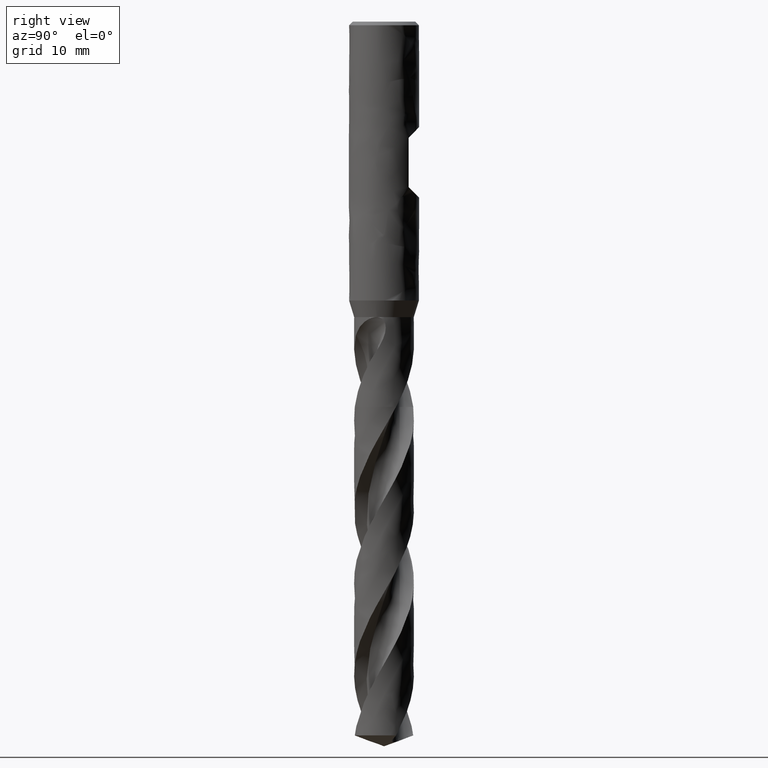
[diagram: clean part render]
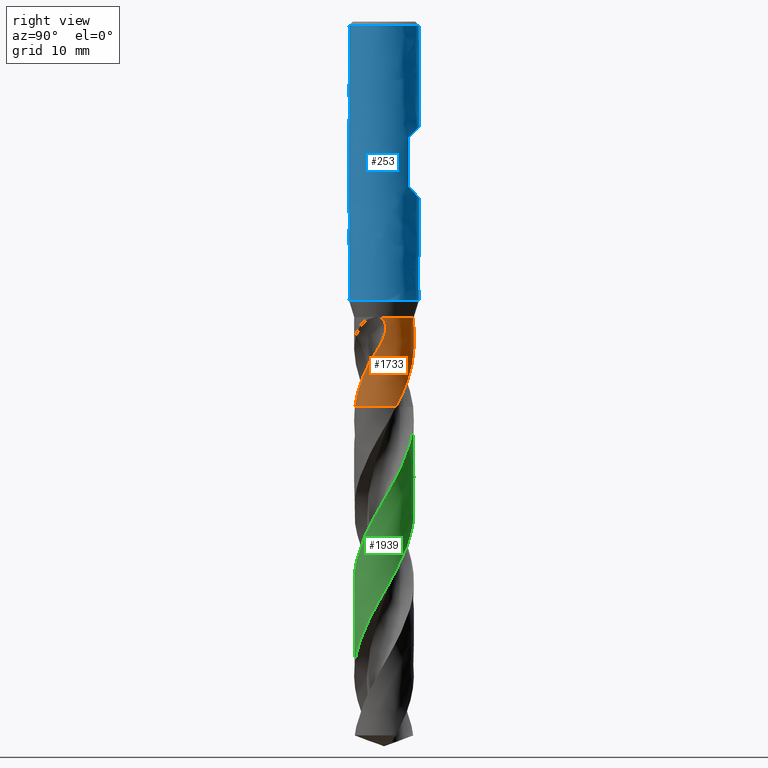
[diagram: same view with three faces highlighted in distinct colors, each labeled with its STEP entity id]
A machine part, right view with three faces highlighted in distinct colors.
Their STEP definitions:

[orange] entity #1733 — the highlighted face is a freeform B-spline surface patch.
#75 = VERTEX_POINT('', #76);
#76 = CARTESIAN_POINT('', (4.15782311979658, -0.880344764558207, -42.));
#86 = EDGE_CURVE('', #87, #75, #89, .T.);
#87 = VERTEX_POINT('', #88);
#88 = CARTESIAN_POINT('', (-4.04962106803154, 1.28960040530202, -42.));
#89 = CIRCLE('', #90, 4.25);
#90 = AXIS2_PLACEMENT_3D('', #91, #92, #93);
#91 = CARTESIAN_POINT('', (1.57474777179495E-31, 2.57175827820944E-15, -42.));
#92 = DIRECTION('', (3.74939945665464E-33, 6.12323399573677E-17, -1.));
#93 = DIRECTION('', (-1., 6.12323399573677E-17, 0.));
#579 = VERTEX_POINT('', #580);
#580 = CARTESIAN_POINT('', (3.8912256861089, 1.70905314714503, -54.75));
#589 = VERTEX_POINT('', #590);
#590 = CARTESIAN_POINT('', (-1.49548155998255, 3.97819493033614, -44.5140707251629));
#610 = EDGE_CURVE('', #589, #579, #611, .T.);
#611 = B_SPLINE_CURVE_WITH_KNOTS('', 3, (#612, #613, #614, #615, #616, #617, #618, #619, #620, #621, #622, #623, #624, #625, #626, #627, #628, #629, #630, #631, #632, #633, #634, #635, #636, #637, #638, #639, #640, #641, #642, #643, #644, #645, #646, #647, #648, #649, #650, #651, #652, #653, #654, #655, #656, #657, #658, #659, #660, #661, #662, #663, #664, #665, #666, #667, #668, #669, #670, #671, #672, #673, #674, #675, #676, #677, #678, #679, #680, #681, #682, #683, #684, #685, #686, #687, #688, #689, #690, #691, #692, #693, #694, #695, #696, #697, #698, #699, #700, #701, #702, #703, #704, #705, #706, #707, #708, #709, #710, #711, #712, #713, #714, #715, #716, #717, #718, #719, #720, #721, #722, #723), .UNSPECIFIED., .F., .U., (4, 3, 3, 3, 3, 3, 3, 3, 3, 3, 3, 3, 3, 3, 3, 3, 3, 3, 3, 3, 3, 3, 3, 3, 3, 3, 3, 3, 3, 3, 3, 3, 3, 3, 3, 3, 3, 4), (0., 0.294458706724667, 0.588945446362852, 0.883460996757941, 1.17801295660079, 1.47260634443218, 1.76724181300462, 2.06192117365947, 2.35664974075469, 2.44415681867967, 2.50251703740838, 2.94609876360323, 3.24179438944737, 3.53751785668076, 3.73463761200895, 4.17845494385518, 4.62228864036685, 5.06621190292115, 5.36206489621199, 5.55922874191994, 5.75636224013172, 5.95345017075747, 6.15051889139154, 6.34759570219496, 6.47898795818262, 6.92258206972312, 7.36602670059712, 7.80942121706786, 8.25281098260297, 8.69617157911272, 9.13948300186937, 9.58278249881722, 10.0260868494334, 10.4693282895779, 10.9125365697022, 11.5771484187955, 12.0202699785156, 12.1181374060823), .UNSPECIFIED.);
#612 = CARTESIAN_POINT('', (-1.49548155998255, 3.97819493033614, -44.5140707251629));
#613 = CARTESIAN_POINT('', (-1.43622999269268, 4.00046875749487, -44.5890848612697));
#614 = CARTESIAN_POINT('', (-1.37677232463599, 4.0213087976565, -44.6643758809243));
#615 = CARTESIAN_POINT('', (-1.31719616089579, 4.04072942347312, -44.7399239598233));
#616 = CARTESIAN_POINT('', (-1.25761432541484, 4.06015189816265, -44.8154792310135));
#617 = CARTESIAN_POINT('', (-1.19790094013334, 4.07815890534818, -44.8913079872724));
#618 = CARTESIAN_POINT('', (-1.13814436898357, 4.09476829568549, -44.9673941686986));
#619 = CARTESIAN_POINT('', (-1.07838195162135, 4.11137931098257, -45.043487793925));
#620 = CARTESIAN_POINT('', (-1.0185648457576, 4.12659564363882, -45.1198557257983));
#621 = CARTESIAN_POINT('', (-0.958779480673527, 4.14043982053108, -45.1964831428643));
#622 = CARTESIAN_POINT('', (-0.898986724631234, 4.15428570890796, -45.2731200329852));
#623 = CARTESIAN_POINT('', (-0.839211912389875, 4.16676241269686, -45.3500304984553));
#624 = CARTESIAN_POINT('', (-0.779532409583917, 4.17789770367925, -45.427195629616));
#625 = CARTESIAN_POINT('', (-0.719844513006756, 4.18903456081216, -45.5043716138573));
#626 = CARTESIAN_POINT('', (-0.660240268264799, 4.19883178167395, -45.5818172799741));
#627 = CARTESIAN_POINT('', (-0.600797100137628, 4.20732014998458, -45.6595171158468));
#628 = CARTESIAN_POINT('', (-0.541345440942197, 4.21580973080317, -45.7372280506335));
#629 = CARTESIAN_POINT('', (-0.482043677873872, 4.22299164224834, -45.8152077005415));
#630 = CARTESIAN_POINT('', (-0.422970769848008, 4.228900061228, -45.89344480345));
#631 = CARTESIAN_POINT('', (-0.363889061683587, 4.23480936038959, -45.9716935614026));
#632 = CARTESIAN_POINT('', (-0.305026019863177, 4.23944595215417, -46.0502141933464));
#633 = CARTESIAN_POINT('', (-0.24644891624064, 4.24284844552381, -46.128989710783));
#634 = CARTESIAN_POINT('', (-0.187862031238266, 4.24625150705197, -46.2077783823908));
#635 = CARTESIAN_POINT('', (-0.129550953613321, 4.24842063078184, -46.286835608278));
#636 = CARTESIAN_POINT('', (-0.07158240967429, 4.24939712884372, -46.3661473543243));
#637 = CARTESIAN_POINT('', (-0.0543711228904342, 4.24968705829588, -46.3896955946935));
#638 = CARTESIAN_POINT('', (-0.0371894749417795, 4.24987188991488, -46.4132670534598));
#639 = CARTESIAN_POINT('', (-0.0200392214225039, 4.24995275616151, -46.4368614244242));
#640 = CARTESIAN_POINT('', (-0.00860137467488747, 4.25000668747715, -46.4525969818545));
#641 = CARTESIAN_POINT('', (0.002822600471315, 4.25001437796491, -46.4683428575933));
#642 = CARTESIAN_POINT('', (0.0142321807451777, 4.24997616993687, -46.4840989685529));
#643 = CARTESIAN_POINT('', (0.10095360542944, 4.24968576007544, -46.6038573082206));
#644 = CARTESIAN_POINT('', (0.186855256716934, 4.24674203743582, -46.7242345234526));
#645 = CARTESIAN_POINT('', (0.271727238230453, 4.24130455261158, -46.8451887721166));
#646 = CARTESIAN_POINT('', (0.328303675464588, 4.23767987561707, -46.9258179778415));
#647 = CARTESIAN_POINT('', (0.384436895980104, 4.23294664977102, -47.0067172195956));
#648 = CARTESIAN_POINT('', (0.44007426720028, 4.22715443760321, -47.0878716005689));
#649 = CARTESIAN_POINT('', (0.49571687698868, 4.22136168006639, -47.1690336226791));
#650 = CARTESIAN_POINT('', (0.550871892801147, 4.21450881841163, -47.2504627227008));
#651 = CARTESIAN_POINT('', (0.60548535674063, 4.20664801032522, -47.332148138472));
#652 = CARTESIAN_POINT('', (0.641888935902235, 4.20140824839097, -47.3865970103229));
#653 = CARTESIAN_POINT('', (0.678054687893685, 4.19572030953228, -47.4411641894968));
#654 = CARTESIAN_POINT('', (0.713966020082116, 4.18960052059479, -47.4958476397404));
#655 = CARTESIAN_POINT('', (0.79482078579739, 4.17582174741615, -47.618968039027));
#656 = CARTESIAN_POINT('', (0.874402230484377, 4.15984985677469, -47.7427051082219));
#657 = CARTESIAN_POINT('', (0.952550054322024, 4.14187739968376, -47.8670268234017));
#658 = CARTESIAN_POINT('', (1.03070075966722, 4.12390427990297, -47.9913531226369));
#659 = CARTESIAN_POINT('', (1.10744077364304, 4.10392540082947, -48.1163002387603));
#660 = CARTESIAN_POINT('', (1.18263516708491, 4.08214086743391, -48.2418344243903));
#661 = CARTESIAN_POINT('', (1.2578447348236, 4.06035193789975, -48.3673939429328));
#662 = CARTESIAN_POINT('', (1.33153801255451, 4.0367487847104, -48.493568729854));
#663 = CARTESIAN_POINT('', (1.40363415761937, 4.01152229852511, -48.6203054628396));
#664 = CARTESIAN_POINT('', (1.45168268789786, 3.99471008777232, -48.7047692541668));
#665 = CARTESIAN_POINT('', (1.49902700298126, 3.97717477326688, -48.7894960479424));
#666 = CARTESIAN_POINT('', (1.54561387109126, 3.95898696152075, -48.8744919946768));
#667 = CARTESIAN_POINT('', (1.57666052697899, 3.94686614817697, -48.9311354226893));
#668 = CARTESIAN_POINT('', (1.60737199414084, 3.93445514814257, -48.9879023666258));
#669 = CARTESIAN_POINT('', (1.63772599529867, 3.92177938751315, -49.0447991732243));
#670 = CARTESIAN_POINT('', (1.66807532436294, 3.90910557793919, -49.1016872222556));
#671 = CARTESIAN_POINT('', (1.69806776584744, 3.89616715955921, -49.1587084727828));
#672 = CARTESIAN_POINT('', (1.72771079816438, 3.88297764581593, -49.2158511425544));
#673 = CARTESIAN_POINT('', (1.75734697846765, 3.86979118084067, -49.2729806037463));
#674 = CARTESIAN_POINT('', (1.78663524533706, 3.85635338140577, -49.3302340315711));
#675 = CARTESIAN_POINT('', (1.81560921259175, 3.84266355372833, -49.387584351686));
#676 = CARTESIAN_POINT('', (1.84458035577868, 3.82897506038665, -49.4449290819143));
#677 = CARTESIAN_POINT('', (1.87323851863836, 3.81503423518602, -49.5023729123667));
#678 = CARTESIAN_POINT('', (1.90164277036595, 3.80082290746556, -49.5598738403653));
#679 = CARTESIAN_POINT('', (1.93004818815991, 3.78661099633416, -49.6173771289224));
#680 = CARTESIAN_POINT('', (1.95820085953963, 3.77212820042633, -49.6749393701225));
#681 = CARTESIAN_POINT('', (1.98618258468772, 3.75733665516989, -49.7325041824613));
#682 = CARTESIAN_POINT('', (2.00483816358939, 3.74747504591782, -49.7708829776522));
#683 = CARTESIAN_POINT('', (2.02342112726246, 3.73747419502828, -49.8092616230015));
#684 = CARTESIAN_POINT('', (2.04195125085776, 3.72732277769453, -49.8476256312275));
#685 = CARTESIAN_POINT('', (2.10451090211883, 3.69305052230784, -49.9771465684867));
#686 = CARTESIAN_POINT('', (2.16641009385966, 3.65709043057102, -50.1065527286283));
#687 = CARTESIAN_POINT('', (2.2274864395596, 3.61950330315889, -50.2358618872078));
#688 = CARTESIAN_POINT('', (2.2885422039835, 3.58192884171483, -50.3651274716761));
#689 = CARTESIAN_POINT('', (2.34878613735232, 3.54272374192957, -50.4943156394267));
#690 = CARTESIAN_POINT('', (2.40813456242192, 3.50191203905367, -50.6233947128671));
#691 = CARTESIAN_POINT('', (2.46747628042889, 3.46110494837508, -50.7524591988702));
#692 = CARTESIAN_POINT('', (2.52593634997768, 3.41868191652076, -50.881431559629));
#693 = CARTESIAN_POINT('', (2.58341801950377, 3.37467796041389, -51.0102873286437));
#694 = CARTESIAN_POINT('', (2.64089907311852, 3.33067447580578, -51.1391417169794));
#695 = CARTESIAN_POINT('', (2.6974104832291, 3.28508309321905, -51.2679001036313));
#696 = CARTESIAN_POINT('', (2.75284543226035, 3.23795336996742, -51.3965453024839));
#697 = CARTESIAN_POINT('', (2.80827673442476, 3.19082674721155, -51.5251820382294));
#698 = CARTESIAN_POINT('', (2.8626395061669, 3.14215502580981, -51.6537271108475));
#699 = CARTESIAN_POINT('', (2.9158196971118, 3.09200509280546, -51.7821709083856));
#700 = CARTESIAN_POINT('', (2.96899398976622, 3.04186072200137, -51.9106004600397));
#701 = CARTESIAN_POINT('', (3.0209944950825, 2.99023042788869, -52.0389499928597));
#702 = CARTESIAN_POINT('', (3.07171296142906, 2.93718904440772, -52.1672089569542));
#703 = CARTESIAN_POINT('', (3.12243006336518, 2.8841490878275, -52.295464470671));
#704 = CARTESIAN_POINT('', (3.1718793313586, 2.82968262578914, -52.4236457247119));
#705 = CARTESIAN_POINT('', (3.2199401154366, 2.77389359078573, -52.5517577180177));
#706 = CARTESIAN_POINT('', (3.26800142573018, 2.71810394495043, -52.6798711140165));
#707 = CARTESIAN_POINT('', (3.31468075769156, 2.66098158515932, -52.8079369059631));
#708 = CARTESIAN_POINT('', (3.35981427518344, 2.60271935411285, -52.9360145948719));
#709 = CARTESIAN_POINT('', (3.40494138766064, 2.54446539121089, -53.0640741079432));
#710 = CARTESIAN_POINT('', (3.44852552068027, 2.48507338189809, -53.1921739339022));
#711 = CARTESIAN_POINT('', (3.49051819008716, 2.42462012791091, -53.320280292686));
#712 = CARTESIAN_POINT('', (3.53250771791557, 2.36417139658551, -53.4483770675069));
#713 = CARTESIAN_POINT('', (3.57291338063934, 2.3026515706421, -53.5765018220526));
#714 = CARTESIAN_POINT('', (3.61169741153451, 2.24012093591282, -53.704609870018));
#715 = CARTESIAN_POINT('', (3.66985590641034, 2.14635328166062, -53.8967139674824));
#716 = CARTESIAN_POINT('', (3.72438873901583, 2.05027114344961, -54.0888340684197));
#717 = CARTESIAN_POINT('', (3.77509048236593, 1.95222740733506, -54.2809161519225));
#718 = CARTESIAN_POINT('', (3.80889522963981, 1.88685798407375, -54.4089844560795));
#719 = CARTESIAN_POINT('', (3.84100372235889, 1.82060561854323, -54.5370640754989));
#720 = CARTESIAN_POINT('', (3.8713644362343, 1.75357845614625, -54.6651382708678));
#721 = CARTESIAN_POINT('', (3.87806987608686, 1.7387748975809, -54.6934246220135));
#722 = CARTESIAN_POINT('', (3.88469076098799, 1.72393206915502, -54.7217132828976));
#723 = CARTESIAN_POINT('', (3.8912256861089, 1.70905314714503, -54.75));
#923 = EDGE_CURVE('', #589, #87, #924, .T.);
#924 = B_SPLINE_CURVE_WITH_KNOTS('', 3, (#925, #926, #927, #928, #929, #930, #931, #932, #933, #934, #935, #936, #937, #938, #939, #940, #941, #942, #943, #944, #945, #946, #947, #948, #949, #950, #951, #952, #953, #954, #955, #956, #957, #958, #959, #960, #961, #962, #963, #964, #965, #966, #967, #968, #969, #970, #971, #972, #973), .UNSPECIFIED., .F., .U., (4, 3, 3, 3, 3, 3, 3, 3, 3, 3, 3, 3, 3, 3, 3, 3, 4), (0., 0.449026659001154, 0.898442511260832, 1.34816763628277, 1.79811093115116, 2.09661974685294, 2.39513576945108, 2.69363552193259, 2.99208915622125, 3.29045725291203, 3.58868590624689, 3.78679201454082, 3.98480288425603, 4.18268881062946, 4.38041114054319, 4.57791978933696, 4.68195710095416), .UNSPECIFIED.);
#925 = CARTESIAN_POINT('', (-1.49548155998254, 3.97819493033614, -44.5140707251629));
#926 = CARTESIAN_POINT('', (-1.58583559840338, 3.944229073787, -44.3996799934759));
#927 = CARTESIAN_POINT('', (-1.67753799689756, 3.90623913027056, -44.2874395362748));
#928 = CARTESIAN_POINT('', (-1.76997630563924, 3.86389491025257, -44.1775992100097));
#929 = CARTESIAN_POINT('', (-1.86249473516188, 3.82151398843828, -44.0676636797882));
#930 = CARTESIAN_POINT('', (-1.95584969137038, 3.77472467819139, -43.9600029771215));
#931 = CARTESIAN_POINT('', (-2.04936429921718, 3.72325206897063, -43.8548972600576));
#932 = CARTESIAN_POINT('', (-2.14294326064861, 3.67174403804421, -43.7497192128004));
#933 = CARTESIAN_POINT('', (-2.2368014464995, 3.61548001582155, -43.646964458807));
#934 = CARTESIAN_POINT('', (-2.33021354800545, 3.55423758641595, -43.5469841355925));
#935 = CARTESIAN_POINT('', (-2.42367096542263, 3.49296544719278, -43.4469553101028));
#936 = CARTESIAN_POINT('', (-2.51681671167044, 3.42662008886737, -43.3495555728678));
#937 = CARTESIAN_POINT('', (-2.60885023056633, 3.35505595698105, -43.2552012604539));
#938 = CARTESIAN_POINT('', (-2.66990862846626, 3.30757769805431, -43.1926031633686));
#939 = CARTESIAN_POINT('', (-2.73053259977145, 3.25776117957977, -43.1312900743155));
#940 = CARTESIAN_POINT('', (-2.7904764931567, 3.20557965758767, -43.0714181009729));
#941 = CARTESIAN_POINT('', (-2.85042183376697, 3.15339687577744, -43.0115446821418));
#942 = CARTESIAN_POINT('', (-2.90973653025357, 3.09880576718972, -42.9530626777188));
#943 = CARTESIAN_POINT('', (-2.96816221341631, 3.04179438405156, -42.8961640432843));
#944 = CARTESIAN_POINT('', (-3.02658471218488, 2.9847861082235, -42.8392685100147));
#945 = CARTESIAN_POINT('', (-3.08417259254073, 2.92530458570042, -42.7839027338145));
#946 = CARTESIAN_POINT('', (-3.14065157166458, 2.86335602141976, -42.7303048431659));
#947 = CARTESIAN_POINT('', (-3.19712182478974, 2.80141702818835, -42.6767152333881));
#948 = CARTESIAN_POINT('', (-3.25254343141461, 2.73694560673175, -42.6248352486545));
#949 = CARTESIAN_POINT('', (-3.30662230511573, 2.66997170983349, -42.5749639422734));
#950 = CARTESIAN_POINT('', (-3.36068567966917, 2.60301700783053, -42.5251069291401));
#951 = CARTESIAN_POINT('', (-3.41347365428199, 2.5334780517482, -42.4771947462628));
#952 = CARTESIAN_POINT('', (-3.46466744164631, 2.46141819258655, -42.4316088363796));
#953 = CARTESIAN_POINT('', (-3.51583730341808, 2.38939201084784, -42.386044231228));
#954 = CARTESIAN_POINT('', (-3.56548910244003, 2.31474075900835, -42.3427352561233));
#955 = CARTESIAN_POINT('', (-3.61327308565869, 2.23757851447822, -42.3021774231061));
#956 = CARTESIAN_POINT('', (-3.64501483430817, 2.18632149473799, -42.2752358319142));
#957 = CARTESIAN_POINT('', (-3.67596231826213, 2.13390895188299, -42.2494843548293));
#958 = CARTESIAN_POINT('', (-3.706003612784, 2.08039352576189, -42.2251062948889));
#959 = CARTESIAN_POINT('', (-3.73603046509498, 2.0269038269299, -42.2007399545861));
#960 = CARTESIAN_POINT('', (-3.76517913108545, 1.97226335284677, -42.1777231820122));
#961 = CARTESIAN_POINT('', (-3.79332890385642, 1.91654789326212, -42.1562789255128));
#962 = CARTESIAN_POINT('', (-3.82146091433643, 1.86086758970562, -42.134848200175));
#963 = CARTESIAN_POINT('', (-3.84862527656984, 1.80405326202828, -42.114964527293));
#964 = CARTESIAN_POINT('', (-3.87469132017912, 1.74621509938741, -42.0969010138146));
#965 = CARTESIAN_POINT('', (-3.90073581444161, 1.68842475277276, -42.0788524338229));
#966 = CARTESIAN_POINT('', (-3.92571720152216, 1.62953634330821, -42.0625971434777));
#967 = CARTESIAN_POINT('', (-3.94949401412514, 1.56971240435619, -42.0484709057035));
#968 = CARTESIAN_POINT('', (-3.97324513081431, 1.50995311792107, -42.03435993434));
#969 = CARTESIAN_POINT('', (-3.99583171218261, 1.44916291452415, -42.0223505784438));
#970 = CARTESIAN_POINT('', (-4.01710183240695, 1.3875852651541, -42.0128541340703));
#971 = CARTESIAN_POINT('', (-4.0283058284822, 1.35514935343432, -42.0078518997449));
#972 = CARTESIAN_POINT('', (-4.03915329302633, 1.32247145746843, -42.003543989462));
#973 = CARTESIAN_POINT('', (-4.04962106803153, 1.28960040530202, -42.));
#1126 = EDGE_CURVE('', #1127, #1129, #1131, .T.);
#1127 = VERTEX_POINT('', #1128);
#1128 = CARTESIAN_POINT('', (3.73255713747948, -2.03236739184898, -48.3463346180256));
#1129 = VERTEX_POINT('', #1130);
#1130 = CARTESIAN_POINT('', (3.06516109353695, -2.94402572520473, -50.329358537222));
#1131 = B_SPLINE_CURVE_WITH_KNOTS('', 3, (#1132, #1133, #1134, #1135, #1136, #1137, #1138, #1139, #1140, #1141, #1142, #1143, #1144, #1145, #1146, #1147, #1148, #1149, #1150, #1151, #1152, #1153, #1154, #1155, #1156, #1157, #1158, #1159, #1160, #1161, #1162), .UNSPECIFIED., .F., .U., (4, 3, 3, 3, 3, 3, 3, 3, 3, 3, 4), (0., 0.295718159758472, 0.591496666186191, 0.78863286802249, 0.985749784586178, 1.18281647894401, 1.37985838119443, 1.57690302213861, 1.70827926176469, 2.15173886292003, 2.284888805737), .UNSPECIFIED.);
#1132 = CARTESIAN_POINT('', (3.73255713747948, -2.03236739184898, -48.3463346180256));
#1133 = CARTESIAN_POINT('', (3.70673316878383, -2.07979456424879, -48.4287989562046));
#1134 = CARTESIAN_POINT('', (3.68034052085234, -2.12611243851062, -48.5117337650582));
#1135 = CARTESIAN_POINT('', (3.6534984173678, -2.17127826735623, -48.5951371852371));
#1136 = CARTESIAN_POINT('', (3.62665083626381, -2.21645331311072, -48.678557625401));
#1137 = CARTESIAN_POINT('', (3.5993480540786, -2.26048445840832, -48.7624618147542));
#1138 = CARTESIAN_POINT('', (3.57173281200502, -2.30330734372341, -48.8468664716499));
#1139 = CARTESIAN_POINT('', (3.55332726928684, -2.33184877178268, -48.9031221261892));
#1140 = CARTESIAN_POINT('', (3.53478151508391, -2.35985598386387, -48.95960629693));
#1141 = CARTESIAN_POINT('', (3.51614614073222, -2.38730314728023, -49.0163288835179));
#1142 = CARTESIAN_POINT('', (3.49751258942608, -2.41474762561883, -49.0730459210968));
#1143 = CARTESIAN_POINT('', (3.47879249818681, -2.4416287710191, -49.1300099590344));
#1144 = CARTESIAN_POINT('', (3.45999080093863, -2.46798777497381, -49.1871845169111));
#1145 = CARTESIAN_POINT('', (3.44119389405917, -2.49434006308015, -49.244344507634));
#1146 = CARTESIAN_POINT('', (3.42231419300028, -2.5201726283428, -49.3017189718405));
#1147 = CARTESIAN_POINT('', (3.4033309335469, -2.54555270162746, -49.3592560822712));
#1148 = CARTESIAN_POINT('', (3.38435006229518, -2.570929581955, -49.4167859542072));
#1149 = CARTESIAN_POINT('', (3.36526475982561, -2.59585568934377, -49.4744815819956));
#1150 = CARTESIAN_POINT('', (3.34602556800748, -2.6204222747947, -49.5322767554193));
#1151 = CARTESIAN_POINT('', (3.32678610878301, -2.64498920169763, -49.5900727321406));
#1152 = CARTESIAN_POINT('', (3.30739200629022, -2.66919791828288, -49.6479704261246));
#1153 = CARTESIAN_POINT('', (3.28776403993281, -2.69315941186642, -49.705889812998));
#1154 = CARTESIAN_POINT('', (3.27467741956502, -2.7091353394925, -49.7445066016222));
#1155 = CARTESIAN_POINT('', (3.26148565380957, -2.7250024490604, -49.783133073287));
#1156 = CARTESIAN_POINT('', (3.24815932534635, -2.74079568687006, -49.8217430314453));
#1157 = CARTESIAN_POINT('', (3.20317639447557, -2.79410565342076, -49.9520706819721));
#1158 = CARTESIAN_POINT('', (3.15668931435394, -2.84653412973196, -50.0822517763378));
#1159 = CARTESIAN_POINT('', (3.10874438256042, -2.89796624616282, -50.2122776737966));
#1160 = CARTESIAN_POINT('', (3.09434878731332, -2.91340887801448, -50.2513183006457));
#1161 = CARTESIAN_POINT('', (3.07982096988223, -2.92876265116808, -50.2903456523981));
#1162 = CARTESIAN_POINT('', (3.06516109353695, -2.94402572520473, -50.329358537222));
#1192 = VERTEX_POINT('', #1193);
#1193 = CARTESIAN_POINT('', (0.900482394054545, -4.15350833127824, -54.75));
#1200 = EDGE_CURVE('', #1129, #1192, #1201, .T.);
#1201 = B_SPLINE_CURVE_WITH_KNOTS('', 3, (#1202, #1203, #1204, #1205, #1206, #1207, #1208, #1209, #1210, #1211, #1212, #1213, #1214, #1215, #1216, #1217, #1218, #1219, #1220, #1221, #1222, #1223, #1224, #1225, #1226, #1227, #1228, #1229, #1230, #1231, #1232, #1233, #1234, #1235, #1236, #1237, #1238), .UNSPECIFIED., .F., .U., (4, 3, 3, 3, 3, 3, 3, 3, 3, 3, 3, 3, 4), (0., 0.295571667884022, 0.738861036090193, 1.18213290757928, 1.62536798512298, 2.06854758775916, 2.51170228880951, 2.95486686415593, 3.39796791211283, 3.84103284195719, 4.28407376025169, 4.94826991755467, 5.0866072862183), .UNSPECIFIED.);
#1202 = CARTESIAN_POINT('', (3.06516109353694, -2.94402572520474, -50.329358537222));
#1203 = CARTESIAN_POINT('', (3.03261850275037, -2.97790731880221, -50.4159609284243));
#1204 = CARTESIAN_POINT('', (2.99940555434913, -3.01136245995872, -50.5024820743763));
#1205 = CARTESIAN_POINT('', (2.96552159122797, -3.04436884952542, -50.5889078347301));
#1206 = CARTESIAN_POINT('', (2.91470345729846, -3.09387082541687, -50.7185265528509));
#1207 = CARTESIAN_POINT('', (2.86236559449061, -3.14237169335536, -50.8479450374589));
#1208 = CARTESIAN_POINT('', (2.80857506322683, -3.18973448961228, -50.9771630111221));
#1209 = CARTESIAN_POINT('', (2.75478665508573, -3.23709541645047, -51.1063758845268));
#1210 = CARTESIAN_POINT('', (2.69953726249105, -3.28332577995616, -51.2354086190697));
#1211 = CARTESIAN_POINT('', (2.64290451293097, -3.32829622112129, -51.3642597269171));
#1212 = CARTESIAN_POINT('', (2.58627646419318, -3.37326292949833, -51.4931001394308));
#1213 = CARTESIAN_POINT('', (2.52825662244168, -3.41697679554097, -51.6217800861337));
#1214 = CARTESIAN_POINT('', (2.46893279176026, -3.4593165321739, -51.7502970985403));
#1215 = CARTESIAN_POINT('', (2.40961638599664, -3.50165096960311, -51.8787980258722));
#1216 = CARTESIAN_POINT('', (2.34898676502986, -3.54261863624505, -52.007157407415));
#1217 = CARTESIAN_POINT('', (2.28713270504749, -3.58211166625258, -52.1353662400079));
#1218 = CARTESIAN_POINT('', (2.22528212055039, -3.621602477207, -52.2635678687421));
#1219 = CARTESIAN_POINT('', (2.16218703814856, -3.65963015213111, -52.3916343028312));
#1220 = CARTESIAN_POINT('', (2.09801078762549, -3.69605881108613, -52.5195992911604));
#1221 = CARTESIAN_POINT('', (2.03383310713834, -3.73248828173821, -52.6475671307832));
#1222 = CARTESIAN_POINT('', (1.968562758957, -3.76732322801114, -52.7754553704605));
#1223 = CARTESIAN_POINT('', (1.90246561453969, -3.80041110743221, -52.9033538017164));
#1224 = CARTESIAN_POINT('', (1.83637794511039, -3.8334942437246, -53.0312338988051));
#1225 = CARTESIAN_POINT('', (1.76948214748931, -3.86482581254872, -53.1591639436563));
#1226 = CARTESIAN_POINT('', (1.7018624730335, -3.89437596064893, -53.2871083126714));
#1227 = CARTESIAN_POINT('', (1.63424831040174, -3.92392370005347, -53.4150422526679));
#1228 = CARTESIAN_POINT('', (1.56589685490049, -3.95169674991065, -53.5430108086235));
#1229 = CARTESIAN_POINT('', (1.49686551966453, -3.97767439794152, -53.6709626489919));
#1230 = CARTESIAN_POINT('', (1.42783792552663, -4.0036506381345, -53.7989075551126));
#1231 = CARTESIAN_POINT('', (1.35810959800893, -4.02783844408278, -53.9268519307771));
#1232 = CARTESIAN_POINT('', (1.28779352300334, -4.05019602514627, -54.0547787105148));
#1233 = CARTESIAN_POINT('', (1.18237737544945, -4.08371396630196, -54.2465634238658));
#1234 = CARTESIAN_POINT('', (1.07561064363921, -4.11312493794379, -54.4383721096446));
#1235 = CARTESIAN_POINT('', (0.967905383179545, -4.13831598228211, -54.6301594423181));
#1236 = CARTESIAN_POINT('', (0.945472759685121, -4.14356271963423, -54.6701045017005));
#1237 = CARTESIAN_POINT('', (0.922995938092073, -4.14862738524019, -54.710054095086));
#1238 = CARTESIAN_POINT('', (0.900482394054545, -4.15350833127824, -54.75));
#1241 = EDGE_CURVE('', #1127, #75, #1242, .T.);
#1242 = B_SPLINE_CURVE_WITH_KNOTS('', 3, (#1243, #1244, #1245, #1246, #1247, #1248, #1249, #1250, #1251, #1252, #1253, #1254, #1255, #1256, #1257, #1258, #1259, #1260, #1261, #1262, #1263, #1264, #1265, #1266, #1267, #1268, #1269, #1270, #1271, #1272, #1273, #1274, #1275, #1276, #1277, #1278, #1279, #1280, #1281, #1282, #1283, #1284, #1285, #1286, #1287, #1288, #1289, #1290, #1291, #1292, #1293, #1294, #1295, #1296, #1297, #1298, #1299, #1300, #1301, #1302, #1303, #1304, #1305, #1306, #1307, #1308, #1309, #1310, #1311, #1312, #1313, #1314, #1315, #1316, #1317, #1318, #1319, #1320, #1321, #1322, #1323, #1324, #1325, #1326, #1327, #1328, #1329, #1330, #1331, #1332, #1333, #1334, #1335, #1336, #1337, #1338, #1339, #1340, #1341, #1342, #1343, #1344, #1345, #1346, #1347, #1348, #1349, #1350, #1351, #1352, #1353, #1354, #1355, #1356, #1357), .UNSPECIFIED., .F., .U., (4, 3, 3, 3, 3, 3, 3, 3, 3, 3, 3, 3, 3, 3, 3, 3, 3, 3, 3, 3, 3, 3, 3, 3, 3, 3, 3, 3, 3, 3, 3, 3, 3, 3, 3, 3, 3, 3, 4), (0., 0.196981854982804, 0.492366603504392, 0.787634984461823, 1.08276895990144, 1.37775759834243, 1.67260533327669, 1.9673160900908, 2.26189167868859, 2.55632996496586, 2.85064643401126, 3.14485765032368, 3.43898123285581, 3.73305142723269, 4.02710681471754, 4.15817625431215, 4.24563099060151, 4.5399270912329, 4.83433653855622, 5.03095121188485, 5.22767940404977, 5.42457051350553, 5.55594551110714, 5.75325638878738, 5.84093164236951, 5.89937418972179, 6.09752620466671, 6.22959936868908, 6.36186755673875, 6.44990303506425, 6.50850638847067, 6.64128983080496, 6.77424440716531, 6.90728944785641, 7.0403219699544, 7.17324071539208, 7.30596926377949, 7.43846656770985, 7.55221081063855), .UNSPECIFIED.);
#1243 = CARTESIAN_POINT('', (3.73255713747948, -2.03236739184898, -48.3463346180256));
#1244 = CARTESIAN_POINT('', (3.74975883135192, -2.00077551259633, -48.2914040100518));
#1245 = CARTESIAN_POINT('', (3.76667110829638, -1.96875926325414, -48.2366244019477));
#1246 = CARTESIAN_POINT('', (3.78325121746856, -1.93636520974832, -48.1819705633225));
#1247 = CARTESIAN_POINT('', (3.8081139713436, -1.88778860684624, -48.1000142309515));
#1248 = CARTESIAN_POINT('', (3.83223191330587, -1.83835545745204, -48.0183320395202));
#1249 = CARTESIAN_POINT('', (3.85547771049736, -1.78823701557093, -47.9368307635068));
#1250 = CARTESIAN_POINT('', (3.87871434994862, -1.73813831797598, -47.855361595126));
#1251 = CARTESIAN_POINT('', (3.90108236723052, -1.68734847246666, -47.7740624107607));
#1252 = CARTESIAN_POINT('', (3.92247595082462, -1.63605697186941, -47.6928309952994));
#1253 = CARTESIAN_POINT('', (3.94385979610649, -1.58478881905046, -47.6116365561999));
#1254 = CARTESIAN_POINT('', (3.96427264737088, -1.53301308237179, -47.530499614143));
#1255 = CARTESIAN_POINT('', (3.98363228215927, -1.48093681179802, -47.4493115863483));
#1256 = CARTESIAN_POINT('', (4.00298238340884, -1.42888618587886, -47.3681635391227));
#1257 = CARTESIAN_POINT('', (4.02128191427265, -1.37653084587621, -47.2869527920002));
#1258 = CARTESIAN_POINT('', (4.0384749179293, -1.32409226916349, -47.2055691576314));
#1259 = CARTESIAN_POINT('', (4.05565970922048, -1.27167874012511, -47.1242243967579));
#1260 = CARTESIAN_POINT('', (4.07174146892771, -1.21917512944479, -47.0426963541764));
#1261 = CARTESIAN_POINT('', (4.0866947523439, -1.16680161174286, -46.9608863354859));
#1262 = CARTESIAN_POINT('', (4.1016410888773, -1.11445242533181, -46.8791143234722));
#1263 = CARTESIAN_POINT('', (4.11546228694838, -1.0622256195914, -46.7970491044932));
#1264 = CARTESIAN_POINT('', (4.12816037534308, -1.01034247433607, -46.7146028187553));
#1265 = CARTESIAN_POINT('', (4.14085263979712, -0.958483125131737, -46.6321943467624));
#1266 = CARTESIAN_POINT('', (4.15242511356934, -0.906957367121315, -46.5493929527317));
#1267 = CARTESIAN_POINT('', (4.16290243033057, -0.856004296454071, -46.4661123886357));
#1268 = CARTESIAN_POINT('', (4.17337486359175, -0.805074975123536, -46.3828706417912));
#1269 = CARTESIAN_POINT('', (4.18275516455306, -0.754708549565484, -46.2991348867065));
#1270 = CARTESIAN_POINT('', (4.19109365843658, -0.705148173232166, -46.2148324865937));
#1271 = CARTESIAN_POINT('', (4.19942870245542, -0.655608301392104, -46.1305649647067));
#1272 = CARTESIAN_POINT('', (4.20672471318963, -0.606862805952498, -46.0457133262881));
#1273 = CARTESIAN_POINT('', (4.21305541171341, -0.559163748675057, -45.9602182428227));
#1274 = CARTESIAN_POINT('', (4.21938384626832, -0.511481749417357, -45.8747537338992));
#1275 = CARTESIAN_POINT('', (4.22474936091984, -0.464832409387022, -45.7886246112973));
#1276 = CARTESIAN_POINT('', (4.2292469429073, -0.419488135600253, -45.7017829564669));
#1277 = CARTESIAN_POINT('', (4.23374318524458, -0.374157368063097, -45.6149671682999));
#1278 = CARTESIAN_POINT('', (4.23737352522732, -0.330116688412887, -45.5274121515397));
#1279 = CARTESIAN_POINT('', (4.24025417425521, -0.287653502867219, -45.4390908319718));
#1280 = CARTESIAN_POINT('', (4.24313430039903, -0.245198025071887, -45.3507855441423));
#1281 = CARTESIAN_POINT('', (4.24526625260626, -0.204302378325547, -45.2616804730407));
#1282 = CARTESIAN_POINT('', (4.24678494543823, -0.165280450142151, -45.1717718011952));
#1283 = CARTESIAN_POINT('', (4.24830356180166, -0.126260486773579, -45.0818676563912));
#1284 = CARTESIAN_POINT('', (4.24920980749626, -0.0890940078819177, -44.9911167445184));
#1285 = CARTESIAN_POINT('', (4.24965510038525, -0.0541435847503152, -44.8995422468292));
#1286 = CARTESIAN_POINT('', (4.24985358098415, -0.038565116990769, -44.8587247049506));
#1287 = CARTESIAN_POINT('', (4.24996075569739, -0.0234245272107696, -44.8177364515068));
#1288 = CARTESIAN_POINT('', (4.2499909779513, -0.0087571303857312, -44.7765822739025));
#1289 = CARTESIAN_POINT('', (4.25001114343955, 0.00102953937766002, -44.7491225719253));
#1290 = CARTESIAN_POINT('', (4.24999706316362, 0.0106062290011706, -44.7215870025854));
#1291 = CARTESIAN_POINT('', (4.24995312042226, 0.0199618188821925, -44.6939774833684));
#1292 = CARTESIAN_POINT('', (4.24980524761422, 0.0514445462668044, -44.601068005956));
#1293 = CARTESIAN_POINT('', (4.24931841880978, 0.0804458174848256, -44.5072681442194));
#1294 = CARTESIAN_POINT('', (4.24866574125775, 0.106486708385267, -44.4126911861582));
#1295 = CARTESIAN_POINT('', (4.24801281233018, 0.132537628806428, -44.318077802248));
#1296 = CARTESIAN_POINT('', (4.24719391025459, 0.155653642094835, -44.2225898940301));
#1297 = CARTESIAN_POINT('', (4.24638574967411, 0.175237167760367, -44.1264306428636));
#1298 = CARTESIAN_POINT('', (4.24584603795639, 0.188315581297561, -44.0622128674915));
#1299 = CARTESIAN_POINT('', (4.24531085872464, 0.199826323473396, -43.9976506634974));
#1300 = CARTESIAN_POINT('', (4.24483066437677, 0.20955340790997, -43.9328400771332));
#1301 = CARTESIAN_POINT('', (4.2443501927805, 0.219286108444707, -43.8679920712711));
#1302 = CARTESIAN_POINT('', (4.24392467558588, 0.227241048027943, -43.8028448483458));
#1303 = CARTESIAN_POINT('', (4.24359943572462, 0.233160522210877, -43.7375373126292));
#1304 = CARTESIAN_POINT('', (4.2432739265212, 0.239084898511226, -43.6721756935265));
#1305 = CARTESIAN_POINT('', (4.24304898985903, 0.242976698920663, -43.606587552762));
#1306 = CARTESIAN_POINT('', (4.24295973463297, 0.244525438928779, -43.5409755197161));
#1307 = CARTESIAN_POINT('', (4.24290017935319, 0.245558831017504, -43.497196089005));
#1308 = CARTESIAN_POINT('', (4.24290079411054, 0.245548772403895, -43.4533768614254));
#1309 = CARTESIAN_POINT('', (4.24296756474087, 0.24438953447091, -43.4096005926429));
#1310 = CARTESIAN_POINT('', (4.24306784692481, 0.242648485883484, -43.3438534248199));
#1311 = CARTESIAN_POINT('', (4.24331951553417, 0.238313656889898, -43.2781063653065));
#1312 = CARTESIAN_POINT('', (4.24371856256266, 0.230982167625779, -43.212747192958));
#1313 = CARTESIAN_POINT('', (4.24389587944365, 0.2277244142372, -43.1837047900406));
#1314 = CARTESIAN_POINT('', (4.24410193371186, 0.223872589449036, -43.154722140773));
#1315 = CARTESIAN_POINT('', (4.24433371096907, 0.219388582045212, -43.1258440258321));
#1316 = CARTESIAN_POINT('', (4.2444882089919, 0.216399633575499, -43.1065944596099));
#1317 = CARTESIAN_POINT('', (4.2446541393175, 0.213128997554078, -43.0873864073882));
#1318 = CARTESIAN_POINT('', (4.24483008508856, 0.209565141965618, -43.0682351291341));
#1319 = CARTESIAN_POINT('', (4.24542663692684, 0.197481733595871, -43.0033018819239));
#1320 = CARTESIAN_POINT('', (4.24614545025842, 0.181997113649504, -42.9388785366773));
#1321 = CARTESIAN_POINT('', (4.24688578620167, 0.162668739953938, -42.8757235123469));
#1322 = CARTESIAN_POINT('', (4.24737923821372, 0.149785906185683, -42.8336291440936));
#1323 = CARTESIAN_POINT('', (4.24788183774532, 0.135170014374823, -42.7920181664398));
#1324 = CARTESIAN_POINT('', (4.24834169891317, 0.118713138597129, -42.7511879508296));
#1325 = CARTESIAN_POINT('', (4.2488022391287, 0.102231961999394, -42.7102974438412));
#1326 = CARTESIAN_POINT('', (4.24922095351588, 0.0838678686436673, -42.6701058390267));
#1327 = CARTESIAN_POINT('', (4.24952470499941, 0.0635592762677129, -42.6309734527993));
#1328 = CARTESIAN_POINT('', (4.24972687687111, 0.0500422192164487, -42.6049275955879));
#1329 = CARTESIAN_POINT('', (4.24987794987779, 0.0356467285382171, -42.5793165212412));
#1330 = CARTESIAN_POINT('', (4.24995116703172, 0.0203734593808115, -42.5542593811178));
#1331 = CARTESIAN_POINT('', (4.24999990614041, 0.0102063675772838, -42.5375793736262));
#1332 = CARTESIAN_POINT('', (4.25001409910326, -0.000356220807430866, -42.5211335223915));
#1333 = CARTESIAN_POINT('', (4.24998495304397, -0.0113092395800213, -42.5049586866446));
#1334 = CARTESIAN_POINT('', (4.24991891392064, -0.0361265828212911, -42.4683097536942));
#1335 = CARTESIAN_POINT('', (4.24963052688225, -0.0630160656696923, -42.43297175774));
#1336 = CARTESIAN_POINT('', (4.24900779272432, -0.0918301550036348, -42.3993799487511));
#1337 = CARTESIAN_POINT('', (4.24838425597383, -0.120681380527364, -42.3657448459492));
#1338 = CARTESIAN_POINT('', (4.24742220904915, -0.15156250291926, -42.3337482492437));
#1339 = CARTESIAN_POINT('', (4.24600679705849, -0.184190877442645, -42.3037901462054));
#1340 = CARTESIAN_POINT('', (4.24459042199982, -0.216841452811954, -42.2738116592148));
#1341 = CARTESIAN_POINT('', (4.24271360213666, -0.251360696081363, -42.2457667878443));
#1342 = CARTESIAN_POINT('', (4.24027500442189, -0.287346283906585, -42.219962397083));
#1343 = CARTESIAN_POINT('', (4.23783663616184, -0.323328485743651, -42.1941604343316));
#1344 = CARTESIAN_POINT('', (4.23482670951915, -0.360907037279575, -42.1705035538117));
#1345 = CARTESIAN_POINT('', (4.23117160947046, -0.399608322249609, -42.1491668118875));
#1346 = CARTESIAN_POINT('', (4.22751963546246, -0.438276507772352, -42.1278483183073));
#1347 = CARTESIAN_POINT('', (4.22321061613679, -0.478197570252994, -42.1087695991931));
#1348 = CARTESIAN_POINT('', (4.2182051275406, -0.518888718310784, -42.0919702180153));
#1349 = CARTESIAN_POINT('', (4.21320680143427, -0.559521640297394, -42.0751948755293));
#1350 = CARTESIAN_POINT('', (4.20749871386839, -0.601047410275779, -42.0606366950742));
#1351 = CARTESIAN_POINT('', (4.20107350747437, -0.643025182086236, -42.0482264926108));
#1352 = CARTESIAN_POINT('', (4.19465949530632, -0.684929818710869, -42.0358379116491));
#1353 = CARTESIAN_POINT('', (4.1875142600448, -0.72739654233988, -42.025553355297));
#1354 = CARTESIAN_POINT('', (4.17965514543489, -0.770053806717177, -42.0172342703489));
#1355 = CARTESIAN_POINT('', (4.17290837387897, -0.806673557444751, -42.0100926305479));
#1356 = CARTESIAN_POINT('', (4.1656240999844, -0.843501135689416, -42.0043840402271));
#1357 = CARTESIAN_POINT('', (4.15782311979659, -0.880344764558211, -42.));
#1733 = ADVANCED_FACE('', (#1734), #1749, .T.);
#1734 = FACE_OUTER_BOUND('', #1735, .T.);
#1735 = EDGE_LOOP('', (#1736, #1743, #1744, #1745, #1746, #1747, #1748));
#1736 = ORIENTED_EDGE('', *, *, #1737, .F.);
#1737 = EDGE_CURVE('', #579, #1192, #1738, .T.);
#1738 = CIRCLE('', #1739, 4.25);
#1739 = AXIS2_PLACEMENT_3D('', #1740, #1741, #1742);
#1740 = CARTESIAN_POINT('', (2.05279620251842E-31, 3.35247061266588E-15, -54.75));
#1741 = DIRECTION('', (3.74939945665464E-33, 6.12323399573677E-17, -1.));
#1742 = DIRECTION('', (-1., 6.12323399573677E-17, 0.));
#1743 = ORIENTED_EDGE('', *, *, #610, .F.);
#1744 = ORIENTED_EDGE('', *, *, #923, .T.);
#1745 = ORIENTED_EDGE('', *, *, #86, .T.);
#1746 = ORIENTED_EDGE('', *, *, #1241, .F.);
#1747 = ORIENTED_EDGE('', *, *, #1126, .T.);
#1748 = ORIENTED_EDGE('', *, *, #1200, .T.);
#1749 = (
   BOUNDED_SURFACE ()
   B_SPLINE_SURFACE (2, 1, ((#1750, #1751), (#1752, #1753), (#1754, #1755), (#1756, #1757), (#1758, #1759), (#1760, #1761), (#1762, #1763), (#1764, #1765), (#1766, #1767)), .UNSPECIFIED., .T., .F., .U.)
   B_SPLINE_SURFACE_WITH_KNOTS ((3, 2, 2, 2, 3), (2, 2), (0., 6.67588438887831, 13.3517687777566, 20.0276531666349, 26.7035375555132), (0., 0.214454659488145), .UNSPECIFIED.)
   GEOMETRIC_REPRESENTATION_ITEM ()
   RATIONAL_B_SPLINE_SURFACE (((1., 1.), (0.707106781186548, 0.707106781186548), (1., 1.), (0.707106781186548, 0.707106781186548), (1., 1.), (0.707106781186548, 0.707106781186548), (1., 1.), (0.707106781186548, 0.707106781186548), (1., 1.)))
   REPRESENTATION_ITEM ('')
   SURFACE ()
);
#1750 = CARTESIAN_POINT('', (-4.25, 2.83199572302825E-15, -42.));
#1751 = CARTESIAN_POINT('', (-4.25, 3.61270805748469E-15, -54.75));
#1752 = CARTESIAN_POINT('', (-4.25, 4.25, -42.));
#1753 = CARTESIAN_POINT('', (-4.25, 4.25, -54.75));
#1754 = CARTESIAN_POINT('', (1.4791141972894E-31, 4.25, -42.));
#1755 = CARTESIAN_POINT('', (2.46519032881566E-31, 4.25, -54.75));
#1756 = CARTESIAN_POINT('', (4.25, 4.25, -42.));
#1757 = CARTESIAN_POINT('', (4.25, 4.25, -54.75));
#1758 = CARTESIAN_POINT('', (4.25, 2.83199572302825E-15, -42.));
#1759 = CARTESIAN_POINT('', (4.25, 3.61270805748469E-15, -54.75));
#1760 = CARTESIAN_POINT('', (4.25, -4.25, -42.));
#1761 = CARTESIAN_POINT('', (4.25, -4.24999999999999, -54.75));
#1762 = CARTESIAN_POINT('', (5.20474889637625E-16, -4.25, -42.));
#1763 = CARTESIAN_POINT('', (5.20474889637625E-16, -4.25, -54.75));
#1764 = CARTESIAN_POINT('', (-4.25, -4.25, -42.));
#1765 = CARTESIAN_POINT('', (-4.25, -4.25, -54.75));
#1766 = CARTESIAN_POINT('', (-4.25, 2.83199572302825E-15, -42.));
#1767 = CARTESIAN_POINT('', (-4.25, 3.61270805748469E-15, -54.75));

[blue] entity #253 — the highlighted face is a freeform B-spline surface patch.
#137 = VERTEX_POINT('', #138);
#138 = CARTESIAN_POINT('', (-5., 2.73273809995736E-15, -39.629));
#144 = EDGE_CURVE('', #137, #137, #145, .T.);
#145 = CIRCLE('', #146, 5.);
#146 = AXIS2_PLACEMENT_3D('', #147, #148, #149);
#147 = CARTESIAN_POINT('', (1.48584951067767E-31, 2.42657640017052E-15, -39.629));
#148 = DIRECTION('', (3.74939945665464E-33, 6.12323399573677E-17, -1.));
#149 = DIRECTION('', (-1., 6.12323399573677E-17, 0.));
#202 = VERTEX_POINT('', #203);
#203 = CARTESIAN_POINT('', (-5., 3.36777869765523E-16, -0.5));
#219 = EDGE_CURVE('', #202, #202, #220, .T.);
#220 = CIRCLE('', #221, 5.);
#221 = AXIS2_PLACEMENT_3D('', #222, #223, #224);
#222 = CARTESIAN_POINT('', (1.8746997283273E-33, 3.06161699786842E-17, -0.5));
#223 = DIRECTION('', (3.74939945665464E-33, 6.12323399573677E-17, -1.));
#224 = DIRECTION('', (-1., 6.12323399573677E-17, 0.));
#253 = ADVANCED_FACE('', (#254, #265), #451, .T.);
#254 = FACE_OUTER_BOUND('', #255, .T.);
#255 = EDGE_LOOP('', (#256, #262, #263, #264));
#256 = ORIENTED_EDGE('', *, *, #257, .T.);
#257 = EDGE_CURVE('', #137, #202, #258, .T.);
#258 = LINE('', #259, #260);
#259 = CARTESIAN_POINT('', (-5., 2.73273809995736E-15, -39.629));
#260 = VECTOR('', #261, 39.129);
#261 = DIRECTION('', (0., -2.39596023019184E-15, 39.129));
#262 = ORIENTED_EDGE('', *, *, #219, .T.);
#263 = ORIENTED_EDGE('', *, *, #257, .F.);
#264 = ORIENTED_EDGE('', *, *, #144, .F.);
#265 = FACE_BOUND('', #266, .T.);
#266 = EDGE_LOOP('', (#267, #277, #364, #372));
#267 = ORIENTED_EDGE('', *, *, #268, .F.);
#268 = EDGE_CURVE('', #269, #271, #273, .T.);
#269 = VERTEX_POINT('', #270);
#270 = CARTESIAN_POINT('', (3.57071421427142, 3.5, -16.5));
#271 = VERTEX_POINT('', #272);
#272 = CARTESIAN_POINT('', (3.57071421427142, 3.5, -23.5));
#273 = LINE('', #274, #275);
#274 = CARTESIAN_POINT('', (3.57071421427142, 3.5, -16.5));
#275 = VECTOR('', #276, 7.);
#276 = DIRECTION('', (0., 4.44089209850063E-16, -7.));
#277 = ORIENTED_EDGE('', *, *, #278, .F.);
#278 = EDGE_CURVE('', #279, #269, #281, .T.);
#279 = VERTEX_POINT('', #280);
#280 = CARTESIAN_POINT('', (-3.57071421427142, 3.5, -16.5));
#281 = B_SPLINE_CURVE_WITH_KNOTS('', 3, (#282, #283, #284, #285, #286, #287, #288, #289, #290, #291, #292, #293, #294, #295, #296, #297, #298, #299, #300, #301, #302, #303, #304, #305, #306, #307, #308, #309, #310, #311, #312, #313, #314, #315, #316, #317, #318, #319, #320, #321, #322, #323, #324, #325, #326, #327, #328, #329, #330, #331, #332, #333, #334, #335, #336, #337, #338, #339, #340, #341, #342, #343, #344, #345, #346, #347, #348, #349, #350, #351, #352, #353, #354, #355, #356, #357, #358, #359, #360, #361, #362, #363), .UNSPECIFIED., .F., .U., (4, 3, 3, 3, 3, 3, 3, 3, 3, 3, 3, 3, 3, 3, 3, 3, 3, 3, 3, 3, 3, 3, 3, 3, 3, 3, 3, 4), (0., 0.034113884401858, 0.477744785271105, 0.921646138215237, 1.36587692968726, 1.66193288302492, 1.95811394690938, 2.25443514488297, 2.55091138328179, 2.84755630975293, 3.14438084834245, 3.44139155508659, 3.73858907509581, 4.03596708411747, 4.33180862682757, 4.62765016953767, 4.92502817855933, 5.22222569856855, 5.51923640531269, 5.81606094390221, 6.11270587037335, 6.40918210877217, 6.70550330674577, 7.00168437063024, 7.29774032396789, 7.74197111543992, 8.18587246838405, 8.66361725365514), .UNSPECIFIED.);
#282 = CARTESIAN_POINT('', (-3.57071421427142, 3.5, -16.5));
#283 = CARTESIAN_POINT('', (-3.56427504914016, 3.50656926241779, -16.4933150699973));
#284 = CARTESIAN_POINT('', (-3.55781171392695, 3.51312691832153, -16.4866419508691));
#285 = CARTESIAN_POINT('', (-3.55132420209363, 3.51967277053198, -16.4799808432664));
#286 = CARTESIAN_POINT('', (-3.46695794567111, 3.60479770907223, -16.3933570764815));
#287 = CARTESIAN_POINT('', (-3.37844247985145, 3.6879854546721, -16.3087046115544));
#288 = CARTESIAN_POINT('', (-3.28578814351442, 3.7687658823467, -16.2265018511453));
#289 = CARTESIAN_POINT('', (-3.19307732202844, 3.84959555644267, -16.1442489772137));
#290 = CARTESIAN_POINT('', (-3.09609712074416, 3.92812245563972, -16.0643394240436));
#291 = CARTESIAN_POINT('', (-2.99492394308079, 4.00380201498054, -15.9873273449615));
#292 = CARTESIAN_POINT('', (-2.89367568039573, 4.07953773941852, -15.9102581118613));
#293 = CARTESIAN_POINT('', (-2.78806685747398, 4.15253987393855, -15.835970600071));
#294 = CARTESIAN_POINT('', (-2.67827641976912, 4.22218372638008, -15.7651005009515));
#295 = CARTESIAN_POINT('', (-2.60510699224167, 4.26859761196501, -15.7178693878437));
#296 = CARTESIAN_POINT('', (-2.53000964820202, 4.31356544734041, -15.6721097861197));
#297 = CARTESIAN_POINT('', (-2.45307301645999, 4.35688337873714, -15.6280291388821));
#298 = CARTESIAN_POINT('', (-2.37610387199879, 4.40021961589677, -15.5839298635649));
#299 = CARTESIAN_POINT('', (-2.29722271975626, 4.441944015062, -15.5414708065071));
#300 = CARTESIAN_POINT('', (-2.21655530582539, 4.48183919571167, -15.500873175734));
#301 = CARTESIAN_POINT('', (-2.13584972519196, 4.52175325222979, -15.4602563367376));
#302 = CARTESIAN_POINT('', (-2.05327275837509, 4.55987689392243, -15.4214614371042));
#303 = CARTESIAN_POINT('', (-1.9689953770587, 4.59598272463263, -15.3847198768441));
#304 = CARTESIAN_POINT('', (-1.88467390034474, 4.63210744654394, -15.3479590927581));
#305 = CARTESIAN_POINT('', (-1.79855309962361, 4.6662530102042, -15.3132123147402));
#306 = CARTESIAN_POINT('', (-1.71085713788037, 4.69818772014953, -15.2807153178074));
#307 = CARTESIAN_POINT('', (-1.62311127917806, 4.73014060020081, -15.2481998308405));
#308 = CARTESIAN_POINT('', (-1.5336765186139, 4.75991992907671, -15.2178961656186));
#309 = CARTESIAN_POINT('', (-1.44283688724848, 4.78729795571522, -15.1900360833063));
#310 = CARTESIAN_POINT('', (-1.35194225444139, 4.81469255915962, -15.1621591323137));
#311 = CARTESIAN_POINT('', (-1.25951372693074, 4.83972032116019, -15.1366906966724));
#312 = CARTESIAN_POINT('', (-1.16589904343752, 4.86216818101879, -15.1138475885239));
#313 = CARTESIAN_POINT('', (-1.07222564487661, 4.88463012016027, -15.090990153193));
#314 = CARTESIAN_POINT('', (-0.977222202676107, 4.90454207535022, -15.0707276003832));
#315 = CARTESIAN_POINT('', (-0.88129942868599, 4.92171832970943, -15.0532489169637));
#316 = CARTESIAN_POINT('', (-0.785316321360413, 4.9389053875585, -15.0357592398331));
#317 = CARTESIAN_POINT('', (-0.688256648043104, 4.9533803669116, -15.0210293938302));
#318 = CARTESIAN_POINT('', (-0.590587307962139, 4.96499815021859, -15.0092070516471));
#319 = CARTESIAN_POINT('', (-0.492858652975936, 4.97662298904286, -14.9973775297174));
#320 = CARTESIAN_POINT('', (-0.3943524604973, 4.98540636972409, -14.9884394966009));
#321 = CARTESIAN_POINT('', (-0.295578376007081, 4.9912556960786, -14.9824871788586));
#322 = CARTESIAN_POINT('', (-0.19731462869268, 4.9970748006527, -14.9765656150235));
#323 = CARTESIAN_POINT('', (-0.098613847570033, 5., -14.9735889105418));
#324 = CARTESIAN_POINT('', (1.53080849893419E-16, 5., -14.9735889105418));
#325 = CARTESIAN_POINT('', (0.0986138475700336, 5., -14.9735889105418));
#326 = CARTESIAN_POINT('', (0.197314628692682, 4.9970748006527, -14.9765656150235));
#327 = CARTESIAN_POINT('', (0.295578376007083, 4.9912556960786, -14.9824871788586));
#328 = CARTESIAN_POINT('', (0.394352460497301, 4.98540636972409, -14.9884394966009));
#329 = CARTESIAN_POINT('', (0.492858652975936, 4.97662298904286, -14.9973775297174));
#330 = CARTESIAN_POINT('', (0.590587307962139, 4.96499815021859, -15.0092070516471));
#331 = CARTESIAN_POINT('', (0.688256648043104, 4.9533803669116, -15.0210293938302));
#332 = CARTESIAN_POINT('', (0.785316321360414, 4.9389053875585, -15.035759239833));
#333 = CARTESIAN_POINT('', (0.88129942868599, 4.92171832970943, -15.0532489169637));
#334 = CARTESIAN_POINT('', (0.977222202676107, 4.90454207535022, -15.0707276003832));
#335 = CARTESIAN_POINT('', (1.07222564487661, 4.88463012016027, -15.090990153193));
#336 = CARTESIAN_POINT('', (1.16589904343752, 4.86216818101879, -15.1138475885239));
#337 = CARTESIAN_POINT('', (1.25951372693074, 4.83972032116018, -15.1366906966724));
#338 = CARTESIAN_POINT('', (1.35194225444139, 4.81469255915962, -15.1621591323137));
#339 = CARTESIAN_POINT('', (1.44283688724849, 4.78729795571522, -15.1900360833063));
#340 = CARTESIAN_POINT('', (1.5336765186139, 4.75991992907671, -15.2178961656186));
#341 = CARTESIAN_POINT('', (1.62311127917806, 4.73014060020081, -15.2481998308405));
#342 = CARTESIAN_POINT('', (1.71085713788038, 4.69818772014953, -15.2807153178074));
#343 = CARTESIAN_POINT('', (1.79855309962361, 4.6662530102042, -15.3132123147402));
#344 = CARTESIAN_POINT('', (1.88467390034474, 4.63210744654394, -15.3479590927581));
#345 = CARTESIAN_POINT('', (1.96899537705871, 4.59598272463263, -15.3847198768441));
#346 = CARTESIAN_POINT('', (2.05327275837509, 4.55987689392243, -15.4214614371042));
#347 = CARTESIAN_POINT('', (2.13584972519196, 4.52175325222978, -15.4602563367377));
#348 = CARTESIAN_POINT('', (2.2165553058254, 4.48183919571166, -15.500873175734));
#349 = CARTESIAN_POINT('', (2.29722271975626, 4.441944015062, -15.5414708065071));
#350 = CARTESIAN_POINT('', (2.3761038719988, 4.40021961589676, -15.5839298635649));
#351 = CARTESIAN_POINT('', (2.45307301646, 4.35688337873714, -15.6280291388821));
#352 = CARTESIAN_POINT('', (2.53000964820203, 4.3135654473404, -15.6721097861197));
#353 = CARTESIAN_POINT('', (2.60510699224168, 4.268597611965, -15.7178693878437));
#354 = CARTESIAN_POINT('', (2.67827641976913, 4.22218372638007, -15.7651005009515));
#355 = CARTESIAN_POINT('', (2.78806685747399, 4.15253987393854, -15.835970600071));
#356 = CARTESIAN_POINT('', (2.89367568039574, 4.07953773941852, -15.9102581118613));
#357 = CARTESIAN_POINT('', (2.9949239430808, 4.00380201498053, -15.9873273449615));
#358 = CARTESIAN_POINT('', (3.09609712074417, 3.92812245563972, -16.0643394240436));
#359 = CARTESIAN_POINT('', (3.19307732202845, 3.84959555644266, -16.1442489772137));
#360 = CARTESIAN_POINT('', (3.28578814351442, 3.76876588234669, -16.2265018511453));
#361 = CARTESIAN_POINT('', (3.38556732014761, 3.68177368230406, -16.3150257570396));
#362 = CARTESIAN_POINT('', (3.48053751299862, 3.59199863686598, -16.4063815069818));
#363 = CARTESIAN_POINT('', (3.57071421427142, 3.5, -16.5));
#364 = ORIENTED_EDGE('', *, *, #365, .T.);
#365 = EDGE_CURVE('', #279, #366, #368, .T.);
#366 = VERTEX_POINT('', #367);
#367 = CARTESIAN_POINT('', (-3.57071421427143, 3.5, -23.5));
#368 = LINE('', #369, #370);
#369 = CARTESIAN_POINT('', (-3.57071421427142, 3.5, -16.5));
#370 = VECTOR('', #371, 7.);
#371 = DIRECTION('', (-1.77635683940025E-15, 4.44089209850063E-16, -7.));
#372 = ORIENTED_EDGE('', *, *, #373, .T.);
#373 = EDGE_CURVE('', #366, #271, #374, .T.);
#374 = B_SPLINE_CURVE_WITH_KNOTS('', 3, (#375, #376, #377, #378, #379, #380, #381, #382, #383, #384, #385, #386, #387, #388, #389, #390, #391, #392, #393, #394, #395, #396, #397, #398, #399, #400, #401, #402, #403, #404, #405, #406, #407, #408, #409, #410, #411, #412, #413, #414, #415, #416, #417, #418, #419, #420, #421, #422, #423, #424, #425, #426, #427, #428, #429, #430, #431, #432, #433, #434, #435, #436, #437, #438, #439, #440, #441, #442, #443, #444, #445, #446, #447, #448, #449, #450), .UNSPECIFIED., .F., .U., (4, 3, 3, 3, 3, 3, 3, 3, 3, 3, 3, 3, 3, 3, 3, 3, 3, 3, 3, 3, 3, 3, 3, 3, 3, 4), (0., 0.443468649789135, 0.886759988140892, 1.32984152591458, 1.77267283862577, 2.21520517630396, 2.51020893408757, 2.8050858527575, 3.09982399025187, 3.39441275289526, 3.68884404188132, 3.98311346905246, 4.33160163163529, 4.6274431743454, 4.92482118336705, 5.22201870337628, 5.51902941012042, 5.81585394870994, 6.11249887518108, 6.40897511357989, 6.70529631155349, 7.00147737543795, 7.29753332877561, 7.74176412024763, 8.18566547319176, 8.66341025846286), .UNSPECIFIED.);
#375 = CARTESIAN_POINT('', (-3.57071421427143, 3.5, -23.5));
#376 = CARTESIAN_POINT('', (-3.48700730382719, 3.58539812998742, -23.5869017684212));
#377 = CARTESIAN_POINT('', (-3.39916377603426, 3.66888595387015, -23.6718595952275));
#378 = CARTESIAN_POINT('', (-3.30719006709263, 3.74999918134983, -23.7544010151786));
#379 = CARTESIAN_POINT('', (-3.2152531318678, 3.83107997744351, -23.8369094327116));
#380 = CARTESIAN_POINT('', (-3.11906671622979, 3.90989436363995, -23.9171115347777));
#381 = CARTESIAN_POINT('', (-3.018700637755, 3.98590597726775, -23.9944615147571));
#382 = CARTESIAN_POINT('', (-2.91838206045937, 4.06188161617847, -24.0717748865984));
#383 = CARTESIAN_POINT('', (-2.81373073052818, 4.13517346377029, -24.1463572125526));
#384 = CARTESIAN_POINT('', (-2.70491450565914, 4.20516795349213, -24.2175841227608));
#385 = CARTESIAN_POINT('', (-2.59615973346719, 4.27512291465305, -24.2887708084133));
#386 = CARTESIAN_POINT('', (-2.48304396851809, 4.34190978304565, -24.3567336194432));
#387 = CARTESIAN_POINT('', (-2.36587881626761, 4.40484022715244, -24.4207721046093));
#388 = CARTESIAN_POINT('', (-2.24879276740088, 4.46772818412912, -24.4847673545577));
#389 = CARTESIAN_POINT('', (-2.12740790123163, 4.52689698961025, -24.5449779684482));
#390 = CARTESIAN_POINT('', (-2.00223466237747, 4.58159975955716, -24.6006439115622));
#391 = CARTESIAN_POINT('', (-1.91879087151313, 4.61806607246025, -24.6377523011669));
#392 = CARTESIAN_POINT('', (-1.83355420105374, 4.65259752685798, -24.6728917644521));
#393 = CARTESIAN_POINT('', (-1.74673807718802, 4.68496596462576, -24.7058301260235));
#394 = CARTESIAN_POINT('', (-1.65995928057632, 4.71732048533705, -24.7387543254954));
#395 = CARTESIAN_POINT('', (-1.57149440783042, 4.74755320636072, -24.7695193659188));
#396 = CARTESIAN_POINT('', (-1.4816139879896, 4.77543924582795, -24.7978964058413));
#397 = CARTESIAN_POINT('', (-1.3917758695618, 4.80331216098096, -24.8262600903647));
#398 = CARTESIAN_POINT('', (-1.30040095201486, 4.8288776784931, -24.8522757499902));
#399 = CARTESIAN_POINT('', (-1.20782059197668, 4.85192430048093, -24.8757281629081));
#400 = CARTESIAN_POINT('', (-1.1152871521559, 4.87495924231852, -24.8991686900187));
#401 = CARTESIAN_POINT('', (-1.0214125864223, 4.89551097389567, -24.92008228401));
#402 = CARTESIAN_POINT('', (-0.92658859079543, 4.91339328605068, -24.9382794570624));
#403 = CARTESIAN_POINT('', (-0.831815283732717, 4.93126603914081, -24.9564669027396));
#404 = CARTESIAN_POINT('', (-0.735943631251928, 4.94649964746766, -24.9719687351947));
#405 = CARTESIAN_POINT('', (-0.63941961200006, 4.95894571051044, -24.9846339409604));
#406 = CARTESIAN_POINT('', (-0.542948656242199, 4.97138493140556, -24.9972921841061));
#407 = CARTESIAN_POINT('', (-0.445665514944978, 4.98105970853072, -25.007137308834));
#408 = CARTESIAN_POINT('', (-0.348058242038255, 4.98787083434899, -25.0140683608211));
#409 = CARTESIAN_POINT('', (-0.232466963946692, 4.99593690068945, -25.0222764495614));
#410 = CARTESIAN_POINT('', (-0.116162720860943, 5., -25.0264110894582));
#411 = CARTESIAN_POINT('', (1.04125926959354E-15, 5., -25.0264110894582));
#412 = CARTESIAN_POINT('', (0.0986138475700347, 5., -25.0264110894582));
#413 = CARTESIAN_POINT('', (0.197314628692683, 4.9970748006527, -25.0234343849765));
#414 = CARTESIAN_POINT('', (0.295578376007085, 4.9912556960786, -25.0175128211414));
#415 = CARTESIAN_POINT('', (0.394352460497303, 4.98540636972409, -25.0115605033991));
#416 = CARTESIAN_POINT('', (0.492858652975938, 4.97662298904286, -25.0026224702826));
#417 = CARTESIAN_POINT('', (0.590587307962141, 4.96499815021859, -24.9907929483529));
#418 = CARTESIAN_POINT('', (0.688256648043106, 4.9533803669116, -24.9789706061698));
#419 = CARTESIAN_POINT('', (0.785316321360415, 4.9389053875585, -24.9642407601669));
#420 = CARTESIAN_POINT('', (0.881299428685992, 4.92171832970943, -24.9467510830363));
#421 = CARTESIAN_POINT('', (0.977222202676109, 4.90454207535022, -24.9292723996168));
#422 = CARTESIAN_POINT('', (1.07222564487661, 4.88463012016027, -24.909009846807));
#423 = CARTESIAN_POINT('', (1.16589904343752, 4.86216818101879, -24.8861524114761));
#424 = CARTESIAN_POINT('', (1.25951372693075, 4.83972032116018, -24.8633093033276));
#425 = CARTESIAN_POINT('', (1.3519422544414, 4.81469255915962, -24.8378408676863));
#426 = CARTESIAN_POINT('', (1.44283688724849, 4.78729795571522, -24.8099639166937));
#427 = CARTESIAN_POINT('', (1.53367651861391, 4.75991992907671, -24.7821038343814));
#428 = CARTESIAN_POINT('', (1.62311127917806, 4.7301406002008, -24.7518001691595));
#429 = CARTESIAN_POINT('', (1.71085713788038, 4.69818772014953, -24.7192846821926));
#430 = CARTESIAN_POINT('', (1.79855309962361, 4.6662530102042, -24.6867876852598));
#431 = CARTESIAN_POINT('', (1.88467390034474, 4.63210744654394, -24.6520409072419));
#432 = CARTESIAN_POINT('', (1.96899537705871, 4.59598272463263, -24.6152801231559));
#433 = CARTESIAN_POINT('', (2.05327275837509, 4.55987689392243, -24.5785385628958));
#434 = CARTESIAN_POINT('', (2.13584972519196, 4.52175325222979, -24.5397436632624));
#435 = CARTESIAN_POINT('', (2.2165553058254, 4.48183919571166, -24.499126824266));
#436 = CARTESIAN_POINT('', (2.29722271975626, 4.441944015062, -24.4585291934929));
#437 = CARTESIAN_POINT('', (2.3761038719988, 4.40021961589676, -24.4160701364351));
#438 = CARTESIAN_POINT('', (2.45307301645999, 4.35688337873714, -24.3719708611179));
#439 = CARTESIAN_POINT('', (2.53000964820203, 4.31356544734041, -24.3278902138803));
#440 = CARTESIAN_POINT('', (2.60510699224168, 4.26859761196501, -24.2821306121563));
#441 = CARTESIAN_POINT('', (2.67827641976912, 4.22218372638008, -24.2348994990485));
#442 = CARTESIAN_POINT('', (2.78806685747399, 4.15253987393854, -24.164029399929));
#443 = CARTESIAN_POINT('', (2.89367568039574, 4.07953773941852, -24.0897418881387));
#444 = CARTESIAN_POINT('', (2.99492394308079, 4.00380201498054, -24.0126726550385));
#445 = CARTESIAN_POINT('', (3.09609712074416, 3.92812245563972, -23.9356605759564));
#446 = CARTESIAN_POINT('', (3.19307732202845, 3.84959555644267, -23.8557510227863));
#447 = CARTESIAN_POINT('', (3.28578814351442, 3.7687658823467, -23.7734981488547));
#448 = CARTESIAN_POINT('', (3.38556732014761, 3.68177368230406, -23.6849742429604));
#449 = CARTESIAN_POINT('', (3.48053751299862, 3.59199863686598, -23.5936184930182));
#450 = CARTESIAN_POINT('', (3.57071421427142, 3.5, -23.5));
#451 = (
   BOUNDED_SURFACE ()
   B_SPLINE_SURFACE (1, 2, ((#452, #453, #454, #455, #456, #457, #458, #459, #460), (#461, #462, #463, #464, #465, #466, #467, #468, #469)), .UNSPECIFIED., .F., .T., .U.)
   B_SPLINE_SURFACE_WITH_KNOTS ((2, 2), (3, 2, 2, 2, 3), (0., 1.), (0., 7.85398163397448, 15.707963267949, 23.5619449019235, 31.4159265358979), .UNSPECIFIED.)
   GEOMETRIC_REPRESENTATION_ITEM ()
   RATIONAL_B_SPLINE_SURFACE (((1., 0.707106781186548, 1., 0.707106781186548, 1., 0.707106781186548, 1., 0.707106781186548, 1.), (1., 0.707106781186548, 1., 0.707106781186548, 1., 0.707106781186548, 1., 0.707106781186548, 1.)))
   REPRESENTATION_ITEM ('')
   SURFACE ()
);
#452 = CARTESIAN_POINT('', (-5., 2.73273809995736E-15, -39.629));
#453 = CARTESIAN_POINT('', (-5., 5., -39.629));
#454 = CARTESIAN_POINT('', (1.4791141972894E-31, 5., -39.629));
#455 = CARTESIAN_POINT('', (5., 5., -39.629));
#456 = CARTESIAN_POINT('', (5., 2.73273809995736E-15, -39.629));
#457 = CARTESIAN_POINT('', (5., -5., -39.629));
#458 = CARTESIAN_POINT('', (6.12323399573677E-16, -5., -39.629));
#459 = CARTESIAN_POINT('', (-5., -5., -39.629));
#460 = CARTESIAN_POINT('', (-5., 2.73273809995736E-15, -39.629));
#461 = CARTESIAN_POINT('', (-5., 3.36777869765522E-16, -0.5));
#462 = CARTESIAN_POINT('', (-5., 5., -0.5));
#463 = CARTESIAN_POINT('', (0., 5., -0.5));
#464 = CARTESIAN_POINT('', (5., 5., -0.5));
#465 = CARTESIAN_POINT('', (5., 3.36777869765522E-16, -0.5));
#466 = CARTESIAN_POINT('', (5., -5., -0.5));
#467 = CARTESIAN_POINT('', (6.12323399573677E-16, -5., -0.5));
#468 = CARTESIAN_POINT('', (-5., -5., -0.5));
#469 = CARTESIAN_POINT('', (-5., 3.36777869765522E-16, -0.5));

[green] entity #1939 — the highlighted face is a freeform B-spline surface patch.
#1833 = EDGE_CURVE('', #1834, #1836, #1838, .T.);
#1834 = VERTEX_POINT('', #1835);
#1835 = CARTESIAN_POINT('', (-4.25, 3.61270805748469E-15, -54.75));
#1836 = VERTEX_POINT('', #1837);
#1837 = CARTESIAN_POINT('', (-0.900482394054538, 4.15350833127825, -54.75));
#1838 = CIRCLE('', #1839, 4.25);
#1839 = AXIS2_PLACEMENT_3D('', #1840, #1841, #1842);
#1840 = CARTESIAN_POINT('', (2.05279620251842E-31, 3.35247061266588E-15, -54.75));
#1841 = DIRECTION('', (3.74939945665464E-33, 6.12323399573677E-17, -1.));
#1842 = DIRECTION('', (-1., 6.12323399573677E-17, 0.));
#1903 = EDGE_CURVE('', #1834, #1904, #1906, .T.);
#1904 = VERTEX_POINT('', #1905);
#1905 = CARTESIAN_POINT('', (-4.25, 3.80023986248502E-15, -57.8126267937971));
#1906 = LINE('', #1907, #1908);
#1907 = CARTESIAN_POINT('', (-4.25, 3.61270805748469E-15, -54.75));
#1908 = VECTOR('', #1909, 3.06262679379708);
#1909 = DIRECTION('', (0., 1.87531805000326E-16, -3.06262679379708));
#1939 = ADVANCED_FACE('', (#1940), #2430, .T.);
#1940 = FACE_OUTER_BOUND('', #1941, .T.);
#1941 = EDGE_LOOP('', (#1942, #1943, #1967, #2162, #2170, #2179, #2429));
#1942 = ORIENTED_EDGE('', *, *, #1833, .T.);
#1943 = ORIENTED_EDGE('', *, *, #1944, .T.);
#1944 = EDGE_CURVE('', #1836, #1945, #1947, .T.);
#1945 = VERTEX_POINT('', #1946);
#1946 = CARTESIAN_POINT('', (0.22561819240316, 4.24400711960486, -56.7152982205216));
#1947 = B_SPLINE_CURVE_WITH_KNOTS('', 3, (#1948, #1949, #1950, #1951, #1952, #1953, #1954, #1955, #1956, #1957, #1958, #1959, #1960, #1961, #1962, #1963, #1964, #1965, #1966), .UNSPECIFIED., .F., .U., (4, 3, 3, 3, 3, 3, 4), (5.0866072862183, 5.61232510856901, 6.27625155896501, 6.71906586512034, 6.85038280610155, 6.90875856065305, 7.35504294480696), .UNSPECIFIED.);
#1948 = CARTESIAN_POINT('', (-0.900482394054538, 4.15350833127825, -54.75));
#1949 = CARTESIAN_POINT('', (-0.814925096997768, 4.17205719010738, -54.901804782367));
#1950 = CARTESIAN_POINT('', (-0.728786137996942, 4.18796283441311, -55.0536478054448));
#1951 = CARTESIAN_POINT('', (-0.642258914874711, 4.20119072243373, -55.2054597477626));
#1952 = CARTESIAN_POINT('', (-0.532984110658844, 4.21789615711063, -55.3971823025355));
#1953 = CARTESIAN_POINT('', (-0.423036374645479, 4.23033797020033, -55.58894126838));
#1954 = CARTESIAN_POINT('', (-0.312796057169744, 4.23847361990348, -55.7806662693568));
#1955 = CARTESIAN_POINT('', (-0.239269856090927, 4.24389979636666, -55.9085397306861));
#1956 = CARTESIAN_POINT('', (-0.16559836309753, 4.24741238492137, -56.0364252314227));
#1957 = CARTESIAN_POINT('', (-0.0918946009015759, 4.24900639942152, -56.1643016651561));
#1958 = CARTESIAN_POINT('', (-0.0700376905537344, 4.24947910571202, -56.2022235251051));
#1959 = CARTESIAN_POINT('', (-0.0481772261367091, 4.24978315684217, -56.2401458140742));
#1960 = CARTESIAN_POINT('', (-0.0263161426018362, 4.24991852400003, -56.2780679731055));
#1961 = CARTESIAN_POINT('', (-0.0165979962825105, 4.24997870024174, -56.2949259247996));
#1962 = CARTESIAN_POINT('', (-0.00687968123366404, 4.25000554281395, -56.3117839311684));
#1963 = CARTESIAN_POINT('', (0.00283854499661012, 4.24999905207781, -56.3286419429489));
#1964 = CARTESIAN_POINT('', (0.0771346742983722, 4.24994943020649, -56.4575219456714));
#1965 = CARTESIAN_POINT('', (0.151432710245585, 4.24795093824495, -56.5864148122609));
#1966 = CARTESIAN_POINT('', (0.225618192403119, 4.24400711960487, -56.7152982205215));
#1967 = ORIENTED_EDGE('', *, *, #1968, .T.);
#1968 = EDGE_CURVE('', #1945, #1969, #1971, .T.);
#1969 = VERTEX_POINT('', #1970);
#1970 = CARTESIAN_POINT('', (-4.25, 5.85114612912769E-15, -91.3064679253069));
#1971 = B_SPLINE_CURVE_WITH_KNOTS('', 3, (#1972, #1973, #1974, #1975, #1976, #1977, #1978, #1979, #1980, #1981, #1982, #1983, #1984, #1985, #1986, #1987, #1988, #1989, #1990, #1991, #1992, #1993, #1994, #1995, #1996, #1997, #1998, #1999, #2000, #2001, #2002, #2003, #2004, #2005, #2006, #2007, #2008, #2009, #2010, #2011, #2012, #2013, #2014, #2015, #2016, #2017, #2018, #2019, #2020, #2021, #2022, #2023, #2024, #2025, #2026, #2027, #2028, #2029, #2030, #2031, #2032, #2033, #2034, #2035, #2036, #2037, #2038, #2039, #2040, #2041, #2042, #2043, #2044, #2045, #2046, #2047, #2048, #2049, #2050, #2051, #2052, #2053, #2054, #2055, #2056, #2057, #2058, #2059, #2060, #2061, #2062, #2063, #2064, #2065, #2066, #2067, #2068, #2069, #2070, #2071, #2072, #2073, #2074, #2075, #2076, #2077, #2078, #2079, #2080, #2081, #2082, #2083, #2084, #2085, #2086, #2087, #2088, #2089, #2090, #2091, #2092, #2093, #2094, #2095, #2096, #2097, #2098, #2099, #2100, #2101, #2102, #2103, #2104, #2105, #2106, #2107, #2108, #2109, #2110, #2111, #2112, #2113, #2114, #2115, #2116, #2117, #2118, #2119, #2120, #2121, #2122, #2123, #2124, #2125, #2126, #2127, #2128, #2129, #2130, #2131, #2132, #2133, #2134, #2135, #2136, #2137, #2138, #2139, #2140, #2141, #2142, #2143, #2144, #2145, #2146, #2147, #2148, #2149, #2150, #2151, #2152, #2153, #2154, #2155, #2156, #2157, #2158, #2159, #2160, #2161), .UNSPECIFIED., .F., .U., (4, 3, 3, 3, 3, 3, 3, 3, 3, 3, 3, 3, 3, 3, 3, 3, 3, 3, 3, 3, 3, 3, 3, 3, 3, 3, 3, 3, 3, 3, 3, 3, 3, 3, 3, 3, 3, 3, 3, 3, 3, 3, 3, 3, 3, 3, 3, 3, 3, 3, 3, 3, 3, 3, 3, 3, 3, 3, 3, 3, 3, 3, 3, 4), (0., 0.6662237409745, 1.33230005231563, 1.99823373047465, 2.66402848998442, 3.32968747212773, 3.99521390037192, 4.66061020588784, 5.32587795821854, 5.99101866235807, 6.65603370644951, 7.32092377738838, 7.98568883607932, 8.65032894747804, 9.31484389928672, 9.97923277096761, 10.6434940145493, 11.3076261845125, 11.971627370432, 12.6354948730989, 12.9308183872032, 12.9892103786443, 13.6555135666267, 14.3216682158339, 14.9876792667159, 15.6535511681944, 16.3192875219358, 16.9848911402638, 17.6503647745589, 18.3157107639902, 18.9809307532001, 19.64602581684, 20.3109970543385, 20.9758451533774, 21.6405701625144, 22.3051717015022, 22.9696493721867, 23.6340023165011, 24.2982290219939, 24.9623276179259, 25.6262960636606, 26.2901317554468, 26.3776880498769, 27.0439893435642, 27.7101437697382, 28.3761563211153, 29.042031289278, 29.7077721548225, 30.373381906952, 31.0388632990451, 31.7042185629001, 32.3694492877632, 33.034556752972, 33.6995420368327, 34.3644057684798, 35.0291480115829, 35.6937685826072, 36.3582670746802, 37.0226426265264, 37.686893815983, 38.3510189457586, 39.0150160168442, 39.6788824933672, 39.8556810024456), .UNSPECIFIED.);
#1972 = CARTESIAN_POINT('', (0.22561819240316, 4.24400711960486, -56.7152982205216));
#1973 = CARTESIAN_POINT('', (0.336364010997485, 4.23811969512529, -56.9076983793659));
#1974 = CARTESIAN_POINT('', (0.446891500354299, 4.22789346799727, -57.1001403279898));
#1975 = CARTESIAN_POINT('', (0.556819383423427, 4.2133658960794, -57.2925511629357));
#1976 = CARTESIAN_POINT('', (0.666722940389324, 4.19884153898933, -57.4849194190043));
#1977 = CARTESIAN_POINT('', (0.776068888760398, 4.1800122717225, -57.6773300313288));
#1978 = CARTESIAN_POINT('', (0.884482041273032, 4.15694497421677, -57.8697092996338));
#1979 = CARTESIAN_POINT('', (0.992871978258162, 4.1338826163283, -58.0620473719577));
#1980 = CARTESIAN_POINT('', (1.10036974959146, 4.10657550200252, -58.2544279940934));
#1981 = CARTESIAN_POINT('', (1.20660747910248, 4.07511943277424, -58.4467772737731));
#1982 = CARTESIAN_POINT('', (1.31282304664396, 4.0436699255127, -58.6390864279824));
#1983 = CARTESIAN_POINT('', (1.41781936043495, 4.00806122526233, -58.8314374994059));
#1984 = CARTESIAN_POINT('', (1.52123572063434, 3.96841805789993, -59.0237578176576));
#1985 = CARTESIAN_POINT('', (1.6246309908494, 3.92878297507828, -59.2160389154949));
#1986 = CARTESIAN_POINT('', (1.72648706997849, 3.88509970518063, -59.4083618412359));
#1987 = CARTESIAN_POINT('', (1.82645473966856, 3.83752043433547, -59.6006538594823));
#1988 = CARTESIAN_POINT('', (1.92640250261245, 3.78995063803816, -59.7929075862649));
#1989 = CARTESIAN_POINT('', (2.02450025371244, 3.73846853041023, -59.9852036045233));
#1990 = CARTESIAN_POINT('', (2.1204136311532, 3.68325210009032, -60.1774682818556));
#1991 = CARTESIAN_POINT('', (2.21630825575437, 3.62804646560397, -60.3696953678867));
#1992 = CARTESIAN_POINT('', (2.31005473276367, 3.56908759588924, -60.5619646760288));
#1993 = CARTESIAN_POINT('', (2.40133356668021, 3.50657911667981, -60.7542029610197));
#1994 = CARTESIAN_POINT('', (2.49259476571548, 3.44408271397882, -60.9464041059729));
#1995 = CARTESIAN_POINT('', (2.58142408384363, 3.37801418775318, -61.1386468635698));
#1996 = CARTESIAN_POINT('', (2.66751782444185, 3.30860222092125, -61.3308590734098));
#1997 = CARTESIAN_POINT('', (2.7535951234585, 3.23920350990219, -61.5230345759037));
#1998 = CARTESIAN_POINT('', (2.83697110666867, 3.16643589082606, -61.715251796198));
#1999 = CARTESIAN_POINT('', (2.9173617968772, 3.09055013648403, -61.9074381522997));
#2000 = CARTESIAN_POINT('', (2.99773729947515, 3.01467871866881, -62.0995882000735));
#2001 = CARTESIAN_POINT('', (3.07515855750576, 2.93566216266132, -62.2917804150486));
#2002 = CARTESIAN_POINT('', (3.14936340578341, 2.8537712133793, -62.4839414080635));
#2003 = CARTESIAN_POINT('', (3.22355430909258, 2.7718956534786, -62.6760662891658));
#2004 = CARTESIAN_POINT('', (3.29455731175167, 2.68711661714574, -62.8682330992988));
#2005 = CARTESIAN_POINT('', (3.36213173831115, 2.5997250189666, -63.0603691782228));
#2006 = CARTESIAN_POINT('', (3.42969345956589, 2.51234985210537, -63.252469131832));
#2007 = CARTESIAN_POINT('', (3.49385376845721, 2.42232958994081, -63.4446104307388));
#2008 = CARTESIAN_POINT('', (3.5543947434571, 2.32997382124447, -63.6367213374415));
#2009 = CARTESIAN_POINT('', (3.61492433935276, 2.23763541146774, -63.8287961355413));
#2010 = CARTESIAN_POINT('', (3.67185913918158, 2.14292709239857, -64.0209125707608));
#2011 = CARTESIAN_POINT('', (3.72500691276809, 2.04617289099185, -64.2129981783356));
#2012 = CARTESIAN_POINT('', (3.77814467800056, 1.94943690954503, -64.4050476139198));
#2013 = CARTESIAN_POINT('', (3.82751641059102, 1.85062027188805, -64.5971390722605));
#2014 = CARTESIAN_POINT('', (3.87295645523117, 1.75005951209758, -64.7891994633933));
#2015 = CARTESIAN_POINT('', (3.918387878415, 1.64951783195822, -64.9812234144149));
#2016 = CARTESIAN_POINT('', (3.95990580859841, 1.54719563793344, -65.173288987497));
#2017 = CARTESIAN_POINT('', (3.99737087262368, 1.44344245008239, -65.3653241051501));
#2018 = CARTESIAN_POINT('', (4.0348287396667, 1.3397091930621, -65.557322333147));
#2019 = CARTESIAN_POINT('', (4.06824965677892, 1.2345056667637, -65.749361702511));
#2020 = CARTESIAN_POINT('', (4.09752163156277, 1.12819168534218, -65.9413707877543));
#2021 = CARTESIAN_POINT('', (4.12678791846441, 1.02189836195304, -66.1333425634185));
#2022 = CARTESIAN_POINT('', (4.15191798764668, 0.914454848839748, -66.3253559086847));
#2023 = CARTESIAN_POINT('', (4.17282865038001, 0.806226428844764, -66.5173384654112));
#2024 = CARTESIAN_POINT('', (4.19373518898973, 0.69801935429387, -66.7092831582113));
#2025 = CARTESIAN_POINT('', (4.21043161929471, 0.588988299971205, -66.9012696895433));
#2026 = CARTESIAN_POINT('', (4.22286361423851, 0.479502758637096, -67.0932253645678));
#2027 = CARTESIAN_POINT('', (4.23529310625076, 0.370039260009506, -67.2851423931869));
#2028 = CARTESIAN_POINT('', (4.24346443012373, 0.260080984595838, -67.4771007177944));
#2029 = CARTESIAN_POINT('', (4.24735204438367, 0.150002036886279, -67.6690288486246));
#2030 = CARTESIAN_POINT('', (4.24908146162448, 0.101033076158596, -67.7544086718944));
#2031 = CARTESIAN_POINT('', (4.24996388655542, 0.0520342369613203, -67.8397927180247));
#2032 = CARTESIAN_POINT('', (4.24999891393765, 0.0030383431077551, -67.9251745977117));
#2033 = CARTESIAN_POINT('', (4.25000583962593, -0.00664922892059166, -67.9420564840154));
#2034 = CARTESIAN_POINT('', (4.24997964187371, -0.0163367677663997, -67.9589384354422));
#2035 = CARTESIAN_POINT('', (4.24992032284421, -0.0260240172865244, -67.9758204040161));
#2036 = CARTESIAN_POINT('', (4.24924344134928, -0.136563923166327, -68.1684582847005));
#2037 = CARTESIAN_POINT('', (4.24425053788987, -0.247088209630031, -68.3611381556415));
#2038 = CARTESIAN_POINT('', (4.23496094236689, -0.35721956361364, -68.5537872415979));
#2039 = CARTESIAN_POINT('', (4.22567341777072, -0.46732636604667, -68.7463933803497));
#2040 = CARTESIAN_POINT('', (4.21208753025745, -0.577082466947843, -68.9390408602995));
#2041 = CARTESIAN_POINT('', (4.19425206277102, -0.686111968953876, -69.1316579792996));
#2042 = CARTESIAN_POINT('', (4.17642043995229, -0.795117968228342, -69.3242335771669));
#2043 = CARTESIAN_POINT('', (4.15433428096283, -0.903439425800176, -69.5168507621102));
#2044 = CARTESIAN_POINT('', (4.12807111140584, -1.01070712829033, -69.7094371621269));
#2045 = CARTESIAN_POINT('', (4.10181342900162, -1.11795241938539, -69.9019833251496));
#2046 = CARTESIAN_POINT('', (4.07137088401335, -1.22418378191871, -70.0945715297218));
#2047 = CARTESIAN_POINT('', (4.0368490043731, -1.32904105124413, -70.2871286281051));
#2048 = CARTESIAN_POINT('', (4.00233415215457, -1.43387697537456, -70.4796465287405));
#2049 = CARTESIAN_POINT('', (3.9637289681026, -1.53737770353441, -70.6722061186842));
#2050 = CARTESIAN_POINT('', (3.92116712351696, -1.63919138280122, -70.8647352130481));
#2051 = CARTESIAN_POINT('', (3.87861376496938, -1.74098476231914, -71.0572259207012));
#2052 = CARTESIAN_POINT('', (3.83208900631018, -1.84113072201077, -71.2497577366169));
#2053 = CARTESIAN_POINT('', (3.78175381864882, -1.93928802789454, -71.4422593344152));
#2054 = CARTESIAN_POINT('', (3.73142846081787, -2.0374261648884, -71.6347233390674));
#2055 = CARTESIAN_POINT('', (3.67727512993398, -2.1336136499358, -71.8272288512139));
#2056 = CARTESIAN_POINT('', (3.61947976178799, -2.22752469212065, -72.0197036293975));
#2057 = CARTESIAN_POINT('', (3.56169547940334, -2.32141772117684, -72.2121414888881));
#2058 = CARTESIAN_POINT('', (3.50024959891033, -2.41306930089902, -72.4046212303591));
#2059 = CARTESIAN_POINT('', (3.43535198915166, -2.50217039999911, -72.5970700504338));
#2060 = CARTESIAN_POINT('', (3.37046666940951, -2.59125462553508, -72.7894824254192));
#2061 = CARTESIAN_POINT('', (3.30210711945834, -2.67782194730624, -72.9819361828314));
#2062 = CARTESIAN_POINT('', (3.23050756487249, -2.76157941643937, -73.1743597160919));
#2063 = CARTESIAN_POINT('', (3.15892145638764, -2.84532115626529, -73.3667471130065));
#2064 = CARTESIAN_POINT('', (3.08406914656506, -2.92628614256985, -73.5591754428029));
#2065 = CARTESIAN_POINT('', (3.00620713347816, -3.00420017153068, -73.7515736533399));
#2066 = CARTESIAN_POINT('', (2.92835961659364, -3.08209969460493, -73.9439360435418));
#2067 = CARTESIAN_POINT('', (2.8474743996926, -3.15697861486773, -74.13633987888));
#2068 = CARTESIAN_POINT('', (2.76382669902519, -3.22858513559043, -74.328713029573));
#2069 = CARTESIAN_POINT('', (2.68019448812401, -3.30017839631605, -74.5210505568703));
#2070 = CARTESIAN_POINT('', (2.59377072612513, -3.36852625478609, -74.7134297742122));
#2071 = CARTESIAN_POINT('', (2.50484859762872, -3.4333997004365, -74.9057783047538));
#2072 = CARTESIAN_POINT('', (2.41594293216511, -3.49826113542452, -75.0980912239102));
#2073 = CARTESIAN_POINT('', (2.32450706621704, -3.5596732792485, -75.2904452056607));
#2074 = CARTESIAN_POINT('', (2.23085256908155, -3.61742958674004, -75.4827692189455));
#2075 = CARTESIAN_POINT('', (2.13721546791367, -3.67517516621653, -75.6750575087741));
#2076 = CARTESIAN_POINT('', (2.04132480548486, -3.72928831848709, -75.8673866056879));
#2077 = CARTESIAN_POINT('', (1.94350696689535, -3.7795873676407, -76.0596856467082));
#2078 = CARTESIAN_POINT('', (1.84570735957524, -3.8298770420675, -76.2519488470714));
#2079 = CARTESIAN_POINT('', (1.74594518521294, -3.87637267117051, -76.4442534336738));
#2080 = CARTESIAN_POINT('', (1.64455760946606, -3.91891952828165, -76.6365273975741));
#2081 = CARTESIAN_POINT('', (1.54318906476394, -3.96145839909726, -76.8287652705196));
#2082 = CARTESIAN_POINT('', (1.44015946147867, -4.00006520058917, -77.021044589613));
#2083 = CARTESIAN_POINT('', (1.33581673308183, -4.03461195849347, -77.2132935264863));
#2084 = CARTESIAN_POINT('', (1.23149383165075, -4.06915215190214, -77.4055059326579));
#2085 = CARTESIAN_POINT('', (1.12581954742654, -4.09964662036892, -77.5977590622068));
#2086 = CARTESIAN_POINT('', (1.019152451251, -4.12599421728982, -77.7899824648922));
#2087 = CARTESIAN_POINT('', (0.912505927983373, -4.15233673254351, -77.9821687934048));
#2088 = CARTESIAN_POINT('', (0.804826451218285, -4.17454400841857, -78.174395843475));
#2089 = CARTESIAN_POINT('', (0.696478281105708, -4.19254314276526, -78.3665928754451));
#2090 = CARTESIAN_POINT('', (0.588151345092709, -4.21053874963743, -78.5587522405962));
#2091 = CARTESIAN_POINT('', (0.479116539156338, -4.22433447592128, -78.7509529210416));
#2092 = CARTESIAN_POINT('', (0.369740182153613, -4.2338861814769, -78.943123069602));
#2093 = CARTESIAN_POINT('', (0.260385693875761, -4.24343597726311, -79.1352547956347));
#2094 = CARTESIAN_POINT('', (0.150650781247162, -4.24874683556103, -79.3274276776057));
#2095 = CARTESIAN_POINT('', (0.0409046433617725, -4.24980314957665, -79.5195705210173));
#2096 = CARTESIAN_POINT('', (0.0264297284390559, -4.24994247161387, -79.5449131104239));
#2097 = CARTESIAN_POINT('', (0.011954207631458, -4.25000783890598, -79.5702558682384));
#2098 = CARTESIAN_POINT('', (-0.00252107366879736, -4.24999925225729, -79.5955986298881));
#2099 = CARTESIAN_POINT('', (-0.112677616035255, -4.24993390806734, -79.7884564362018));
#2100 = CARTESIAN_POINT('', (-0.222842731331525, -4.24558256151858, -79.9813553640638));
#2101 = CARTESIAN_POINT('', (-0.332641913086412, -4.23696227947093, -80.1742243143268));
#2102 = CARTESIAN_POINT('', (-0.442416892677887, -4.22834389752374, -80.3670507520156));
#2103 = CARTESIAN_POINT('', (-0.551868066332527, -4.2154551710177, -80.5599180711756));
#2104 = CARTESIAN_POINT('', (-0.660623772641044, -4.19834208122947, -80.7527552984599));
#2105 = CARTESIAN_POINT('', (-0.76935631661193, -4.18123263611587, -80.9455514560742));
#2106 = CARTESIAN_POINT('', (-0.877433801250183, -4.15989438040323, -81.1383891097987));
#2107 = CARTESIAN_POINT('', (-0.984491934607878, -4.13440148397472, -81.3311960752718));
#2108 = CARTESIAN_POINT('', (-1.09152795216296, -4.10891385380528, -81.5239632111622));
#2109 = CARTESIAN_POINT('', (-1.19758320323251, -4.07926421173984, -81.7167719005823));
#2110 = CARTESIAN_POINT('', (-1.30230049666792, -4.04555477238643, -81.9095501648631));
#2111 = CARTESIAN_POINT('', (-1.40699670076389, -4.01185212188122, -82.1022896049333));
#2112 = CARTESIAN_POINT('', (-1.51039432497797, -3.97407874663956, -82.2950698310268));
#2113 = CARTESIAN_POINT('', (-1.61214332271651, -3.93236492546415, -82.4878203281569));
#2114 = CARTESIAN_POINT('', (-1.71387228163926, -3.89065931955961, -82.6805328643067));
#2115 = CARTESIAN_POINT('', (-1.81399198053511, -3.8449989713908, -82.8732861810487));
#2116 = CARTESIAN_POINT('', (-1.91216450625397, -3.79554039644192, -83.0660094666025));
#2117 = CARTESIAN_POINT('', (-2.01031809981485, -3.74609135937085, -83.2586955862827));
#2118 = CARTESIAN_POINT('', (-2.10656100528781, -3.69282762838867, -83.4514231214191));
#2119 = CARTESIAN_POINT('', (-2.20057079603962, -3.63593016594345, -83.6441200698217));
#2120 = CARTESIAN_POINT('', (-2.29456276917938, -3.57904348723579, -83.836780496502));
#2121 = CARTESIAN_POINT('', (-2.38635586148789, -3.51850422449404, -84.029482201324));
#2122 = CARTESIAN_POINT('', (-2.47564223097398, -3.45451813488048, -84.2221538126156));
#2123 = CARTESIAN_POINT('', (-2.56491188813352, -3.39054402197099, -84.4147893602739));
#2124 = CARTESIAN_POINT('', (-2.6517091301008, -3.32310039334775, -84.6074653898518));
#2125 = CARTESIAN_POINT('', (-2.73574149774089, -3.25241732524263, -84.8001119006056));
#2126 = CARTESIAN_POINT('', (-2.81975829514316, -3.18174735390261, -84.9927227161615));
#2127 = CARTESIAN_POINT('', (-2.90104301226339, -3.10781247455863, -85.1853742488952));
#2128 = CARTESIAN_POINT('', (-2.97932318795996, -3.03086346470508, -85.3779957880323));
#2129 = CARTESIAN_POINT('', (-3.057588983458, -2.95392859051268, -85.5705819422721));
#2130 = CARTESIAN_POINT('', (-3.13287945952168, -2.87395313390783, -85.7632094229126));
#2131 = CARTESIAN_POINT('', (-3.20494408148591, -2.79120644785519, -85.9558064442428));
#2132 = CARTESIAN_POINT('', (-3.27699553080627, -2.70847488701374, -86.1483682608928));
#2133 = CARTESIAN_POINT('', (-3.34584785109832, -2.62294372040892, -86.3409710673087));
#2134 = CARTESIAN_POINT('', (-3.41127138109793, -2.53490188459084, -86.5335440991904));
#2135 = CARTESIAN_POINT('', (-3.47668295645327, -2.44687613639183, -86.726081942783));
#2136 = CARTESIAN_POINT('', (-3.53869156189452, -2.35630750246693, -86.9186600293887));
#2137 = CARTESIAN_POINT('', (-3.59708968158642, -2.26350299814789, -87.1112087539919));
#2138 = CARTESIAN_POINT('', (-3.65547711229218, -2.17071548043844, -87.3037222351547));
#2139 = CARTESIAN_POINT('', (-3.71027726167037, -2.07565824068969, -87.4962763971366));
#2140 = CARTESIAN_POINT('', (-3.76130813759802, -1.97865133210449, -87.6888005912663));
#2141 = CARTESIAN_POINT('', (-3.81232964006346, -1.88166224195913, -87.8812894221336));
#2142 = CARTESIAN_POINT('', (-3.8596013584084, -1.78268988496701, -88.0738194648992));
#2143 = CARTESIAN_POINT('', (-3.90296750632548, -1.68206558866396, -88.2663192195433));
#2144 = CARTESIAN_POINT('', (-3.94632563098272, -1.58145990906805, -88.4587833594136));
#2145 = CARTESIAN_POINT('', (-3.98579500212581, -1.47916710134958, -88.6512881810883));
#2146 = CARTESIAN_POINT('', (-4.02124530103461, -1.37553125333708, -88.8437635358503));
#2147 = CARTESIAN_POINT('', (-4.05668896411242, -1.27191480459605, -89.0362028617504));
#2148 = CARTESIAN_POINT('', (-4.08812839349929, -1.16691674879928, -89.2286822521807));
#2149 = CARTESIAN_POINT('', (-4.11545989938744, -1.06089104838054, -89.4211323898568));
#2150 = CARTESIAN_POINT('', (-4.14278621838097, -0.954885469214395, -89.6135460048991));
#2151 = CARTESIAN_POINT('', (-4.16601632381761, -0.84781352625302, -89.8060002796366));
#2152 = CARTESIAN_POINT('', (-4.18507474393673, -0.740033369290128, -89.9984246132468));
#2153 = CARTESIAN_POINT('', (-4.20412948915152, -0.63227399483508, -90.1908118429936));
#2154 = CARTESIAN_POINT('', (-4.21902085745968, -0.523768973710904, -90.3832401255246));
#2155 = CARTESIAN_POINT('', (-4.22970149910534, -0.414879775918389, -90.5756383551576));
#2156 = CARTESIAN_POINT('', (-4.24038004008855, -0.306011994390735, -90.7679987440174));
#2157 = CARTESIAN_POINT('', (-4.24685326789526, -0.196721238104665, -90.9603994803732));
#2158 = CARTESIAN_POINT('', (-4.24910176676634, -0.0873737698817647, -91.1527710472448));
#2159 = CARTESIAN_POINT('', (-4.24970057881986, -0.0582527492594274, -91.2040027443025));
#2160 = CARTESIAN_POINT('', (-4.25, -0.0291258856013604, -91.2552354942763));
#2161 = CARTESIAN_POINT('', (-4.25, 4.77561757402207E-15, -91.3064679253069));
#2162 = ORIENTED_EDGE('', *, *, #2163, .T.);
#2163 = EDGE_CURVE('', #1969, #2164, #2166, .T.);
#2164 = VERTEX_POINT('', #2165);
#2165 = CARTESIAN_POINT('', (-4.25, 6.47244977667214E-15, -101.453126504369));
#2166 = LINE('', #2167, #2168);
#2167 = CARTESIAN_POINT('', (-4.25, 5.85114612912769E-15, -91.3064679253069));
#2168 = VECTOR('', #2169, 10.1466585790617);
#2169 = DIRECTION('', (0., 6.21303647544447E-16, -10.1466585790617));
#2170 = ORIENTED_EDGE('', *, *, #2171, .F.);
#2171 = EDGE_CURVE('', #2172, #2164, #2174, .T.);
#2172 = VERTEX_POINT('', #2173);
#2173 = CARTESIAN_POINT('', (-3.88587515378507, -1.72118397889238, -101.453126504369));
#2174 = CIRCLE('', #2175, 4.25);
#2175 = AXIS2_PLACEMENT_3D('', #2176, #2177, #2178);
#2176 = CARTESIAN_POINT('', (3.80388297391395E-31, 6.21221233185333E-15, -101.453126504369));
#2177 = DIRECTION('', (3.74939945665464E-33, 6.12323399573677E-17, -1.));
#2178 = DIRECTION('', (-1., 6.12323399573677E-17, 0.));
#2179 = ORIENTED_EDGE('', *, *, #2180, .T.);
#2180 = EDGE_CURVE('', #2172, #1904, #2181, .T.);
#2181 = B_SPLINE_CURVE_WITH_KNOTS('', 3, (#2182, #2183, #2184, #2185, #2186, #2187, #2188, #2189, #2190, #2191, #2192, #2193, #2194, #2195, #2196, #2197, #2198, #2199, #2200, #2201, #2202, #2203, #2204, #2205, #2206, #2207, #2208, #2209, #2210, #2211, #2212, #2213, #2214, #2215, #2216, #2217, #2218, #2219, #2220, #2221, #2222, #2223, #2224, #2225, #2226, #2227, #2228, #2229, #2230, #2231, #2232, #2233, #2234, #2235, #2236, #2237, #2238, #2239, #2240, #2241, #2242, #2243, #2244, #2245, #2246, #2247, #2248, #2249, #2250, #2251, #2252, #2253, #2254, #2255, #2256, #2257, #2258, #2259, #2260, #2261, #2262, #2263, #2264, #2265, #2266, #2267, #2268, #2269, #2270, #2271, #2272, #2273, #2274, #2275, #2276, #2277, #2278, #2279, #2280, #2281, #2282, #2283, #2284, #2285, #2286, #2287, #2288, #2289, #2290, #2291, #2292, #2293, #2294, #2295, #2296, #2297, #2298, #2299, #2300, #2301, #2302, #2303, #2304, #2305, #2306, #2307, #2308, #2309, #2310, #2311, #2312, #2313, #2314, #2315, #2316, #2317, #2318, #2319, #2320, #2321, #2322, #2323, #2324, #2325, #2326, #2327, #2328, #2329, #2330, #2331, #2332, #2333, #2334, #2335, #2336, #2337, #2338, #2339, #2340, #2341, #2342, #2343, #2344, #2345, #2346, #2347, #2348, #2349, #2350, #2351, #2352, #2353, #2354, #2355, #2356, #2357, #2358, #2359, #2360, #2361, #2362, #2363, #2364, #2365, #2366, #2367, #2368, #2369, #2370, #2371, #2372, #2373, #2374, #2375, #2376, #2377, #2378, #2379, #2380, #2381, #2382, #2383, #2384, #2385, #2386, #2387, #2388, #2389, #2390, #2391, #2392, #2393, #2394, #2395, #2396, #2397, #2398, #2399, #2400, #2401, #2402, #2403, #2404, #2405, #2406, #2407, #2408, #2409, #2410, #2411, #2412, #2413, #2414, #2415, #2416, #2417, #2418, #2419, #2420, #2421, #2422, #2423, #2424, #2425, #2426, #2427, #2428), .UNSPECIFIED., .F., .U., (4, 3, 3, 3, 3, 3, 3, 3, 3, 3, 3, 3, 3, 3, 3, 3, 3, 3, 3, 3, 3, 3, 3, 3, 3, 3, 3, 3, 3, 3, 3, 3, 3, 3, 3, 3, 3, 3, 3, 3, 3, 3, 3, 3, 3, 3, 3, 3, 3, 3, 3, 3, 3, 3, 3, 3, 3, 3, 3, 3, 3, 3, 3, 3, 3, 3, 3, 3, 3, 3, 3, 3, 3, 3, 3, 3, 3, 3, 3, 3, 3, 3, 4), (0., 0.665560158428719, 1.33099420303561, 1.99630412872045, 2.66149139599548, 3.32655658142824, 3.99150024516525, 4.656322929949, 5.32102450195735, 5.985604069638, 6.65006085179368, 7.31439387238581, 7.97860141746246, 8.64268104507376, 9.30663044948344, 9.74945735172695, 9.88077547496873, 9.93915482224494, 10.6054444018189, 11.271589255999, 11.9375941498602, 12.6034630905537, 13.2691991823351, 13.9348050921684, 14.6002834320381, 15.2656361838329, 15.9308645727825, 16.5959696531068, 17.2609523807694, 17.9258131228018, 18.5905515671618, 19.2551673747418, 19.9196599905109, 20.5840282414016, 21.2482703100889, 21.9123843692508, 22.5763682056285, 23.2402188812332, 23.371536558664, 23.4299223689064, 24.0962152851185, 24.7623625220423, 25.4283687797504, 26.0942380596005, 26.7599735458754, 27.4255779750696, 28.0910538680825, 28.7564031987048, 29.4216272740783, 30.0867271547831, 30.7517037008134, 31.4165572730661, 32.081287636767, 32.7458943957833, 33.4103769004279, 34.0747339722232, 34.7389638489777, 35.4030645913975, 36.0670338885641, 36.7308687900405, 36.8184249023808, 36.8768104608091, 37.5431107263801, 38.2092642222401, 38.875275625257, 39.5411489463448, 40.2068874417797, 40.872493915944, 41.5379708494486, 42.2033202165321, 42.8685433875557, 43.5336414323853, 44.1986151673939, 44.8634649494198, 45.528190588752, 46.1927916556859, 46.8572674553302, 47.5216167975968, 48.1858379336445, 48.8499288670863, 49.5138872135798, 50.1777100215507, 50.2570125178366), .UNSPECIFIED.);
#2182 = CARTESIAN_POINT('', (-3.88587515378507, -1.72118397889238, -101.453126504369));
#2183 = CARTESIAN_POINT('', (-3.84147167729332, -1.82143262642628, -101.260260061237));
#2184 = CARTESIAN_POINT('', (-3.79317585115277, -1.91998458950204, -101.067361202989));
#2185 = CARTESIAN_POINT('', (-3.74114831494923, -2.01650918310642, -100.874500986124));
#2186 = CARTESIAN_POINT('', (-3.68913063719552, -2.11301548672566, -100.681677313422));
#2187 = CARTESIAN_POINT('', (-3.63336424937762, -2.20752936555174, -100.488821101133));
#2188 = CARTESIAN_POINT('', (-3.57403470312024, -2.2997338847989, -100.296003555866));
#2189 = CARTESIAN_POINT('', (-3.51471622320276, -2.39192120575926, -100.103221975555));
#2190 = CARTESIAN_POINT('', (-3.45181447202792, -2.48183326417854, -99.910408312571));
#2191 = CARTESIAN_POINT('', (-3.38553994746634, -2.5691670370199, -99.7176327398753));
#2192 = CARTESIAN_POINT('', (-3.31927764146256, -2.65648470876117, -99.5248927078265));
#2193 = CARTESIAN_POINT('', (-3.24961897769654, -2.74125773786155, -99.332120883962));
#2194 = CARTESIAN_POINT('', (-3.17679749711592, -2.82319989769021, -99.1393871210711));
#2195 = CARTESIAN_POINT('', (-3.10398938146416, -2.90512701867143, -98.9466887306144));
#2196 = CARTESIAN_POINT('', (-3.02799299265398, -2.98425433603812, -98.7539580071462));
#2197 = CARTESIAN_POINT('', (-2.94906185288973, -3.06031602744399, -98.5612659242325));
#2198 = CARTESIAN_POINT('', (-2.87014513554025, -3.13636382074494, -98.3686090503015));
#2199 = CARTESIAN_POINT('', (-2.788266808828, -3.20937402731646, -98.1759196780348));
#2200 = CARTESIAN_POINT('', (-2.70370004929081, -3.27910140792639, -97.9832688493559));
#2201 = CARTESIAN_POINT('', (-2.61914867571578, -3.34881610243075, -97.790653071309));
#2202 = CARTESIAN_POINT('', (-2.53187905301215, -3.41527449179696, -97.5980053265236));
#2203 = CARTESIAN_POINT('', (-2.44218393179409, -3.47825209599401, -97.4053955709162));
#2204 = CARTESIAN_POINT('', (-2.35250515060972, -3.5412182273689, -97.2128209036151));
#2205 = CARTESIAN_POINT('', (-2.26036816523863, -3.60072842708272, -97.0202143958568));
#2206 = CARTESIAN_POINT('', (-2.16608202500165, -3.65658155398792, -96.8276460392785));
#2207 = CARTESIAN_POINT('', (-2.07181319075226, -3.71242442918997, -96.6351130281452));
#2208 = CARTESIAN_POINT('', (-1.97536184908148, -3.76463185516934, -96.4425475951029));
#2209 = CARTESIAN_POINT('', (-1.87704990379058, -3.81302814816253, -96.2500208166142));
#2210 = CARTESIAN_POINT('', (-1.77875612228984, -3.86141549961654, -96.0575296087368));
#2211 = CARTESIAN_POINT('', (-1.67856757055702, -3.90601026991374, -95.8650060023158));
#2212 = CARTESIAN_POINT('', (-1.57681911200931, -3.94666206914174, -95.6725208060663));
#2213 = CARTESIAN_POINT('', (-1.47508960510549, -3.9873062965752, -95.480071462064));
#2214 = CARTESIAN_POINT('', (-1.37176344807089, -4.02402388334959, -95.2875902486712));
#2215 = CARTESIAN_POINT('', (-1.26718771623985, -4.05669018928126, -95.0951469464385));
#2216 = CARTESIAN_POINT('', (-1.16263173608975, -4.08935032538327, -94.9027399918233));
#2217 = CARTESIAN_POINT('', (-1.05678755131972, -4.11797294132512, -94.7103011374636));
#2218 = CARTESIAN_POINT('', (-0.950010105623938, -4.14246071788405, -94.5179005149347));
#2219 = CARTESIAN_POINT('', (-0.843253223832177, -4.16694377842563, -94.3255369461853));
#2220 = CARTESIAN_POINT('', (-0.735525058794706, -4.18730243842662, -94.1331409144592));
#2221 = CARTESIAN_POINT('', (-0.627185245608718, -4.20346745767003, -93.9407835083708));
#2222 = CARTESIAN_POINT('', (-0.518866677401118, -4.21962930702164, -93.7484638227548));
#2223 = CARTESIAN_POINT('', (-0.409898136204944, -4.23160488924428, -93.5561118575384));
#2224 = CARTESIAN_POINT('', (-0.300644353028743, -4.23935289554813, -93.3637981598243));
#2225 = CARTESIAN_POINT('', (-0.227776580212053, -4.24452049658416, -93.2355328455517));
#2226 = CARTESIAN_POINT('', (-0.154766974334739, -4.24780935579684, -93.1072585898276));
#2227 = CARTESIAN_POINT('', (-0.0817247534192654, -4.24921417025296, -92.9789960944471));
#2228 = CARTESIAN_POINT('', (-0.060064444798817, -4.24963076101776, -92.9409604871017));
#2229 = CARTESIAN_POINT('', (-0.0384005975793381, -4.24988173400343, -92.9029247202182));
#2230 = CARTESIAN_POINT('', (-0.0167360728423572, -4.24996704738587, -92.8648893283697));
#2231 = CARTESIAN_POINT('', (-0.00710479894069297, -4.25000497466855, -92.8479801516719));
#2232 = CARTESIAN_POINT('', (0.00252665368300408, -4.25001016238063, -92.8310709716408));
#2233 = CARTESIAN_POINT('', (0.0121580377130318, -4.24998260962547, -92.8141618375839));
#2234 = CARTESIAN_POINT('', (0.122082028224964, -4.24966814715704, -92.6211761269273));
#2235 = CARTESIAN_POINT('', (0.232019546891493, -4.24508572011333, -92.4281579834897));
#2236 = CARTESIAN_POINT('', (0.341599482988406, -4.23624949610173, -92.2351786430293));
#2237 = CARTESIAN_POINT('', (0.451155617123094, -4.22741519141475, -92.0422412197951));
#2238 = CARTESIAN_POINT('', (0.560393699105505, -4.21432578907005, -91.8492709483719));
#2239 = CARTESIAN_POINT('', (0.668946016847188, -4.19702409172789, -91.6563396488582));
#2240 = CARTESIAN_POINT('', (0.777475527211593, -4.17972602955766, -91.4634488851619));
#2241 = CARTESIAN_POINT('', (0.885358870418923, -4.15821113843972, -91.2705256419272));
#2242 = CARTESIAN_POINT('', (0.992231467612797, -4.13255087260628, -91.0776409016793));
#2243 = CARTESIAN_POINT('', (1.09908224864847, -4.10689584486412, -90.8847955354535));
#2244 = CARTESIAN_POINT('', (1.20496276674783, -4.07708748860003, -90.6919180422462));
#2245 = CARTESIAN_POINT('', (1.30951430151275, -4.04322548148549, -90.4990788704382));
#2246 = CARTESIAN_POINT('', (1.41404497698118, -4.00937023025116, -90.3062781723786));
#2247 = CARTESIAN_POINT('', (1.51728606465527, -3.97145039970378, -90.1134449718058));
#2248 = CARTESIAN_POINT('', (1.61888921766547, -3.92959256169472, -89.920650599435));
#2249 = CARTESIAN_POINT('', (1.72047250259798, -3.88774290881331, -89.7278939272088));
#2250 = CARTESIAN_POINT('', (1.82045494610716, -3.84194178659667, -89.5351044679507));
#2251 = CARTESIAN_POINT('', (1.91849971470105, -3.79234213180878, -89.3423538790853));
#2252 = CARTESIAN_POINT('', (2.01652569204416, -3.74275198328588, -89.1496402327789));
#2253 = CARTESIAN_POINT('', (2.11265045215872, -3.68934664454854, -88.9568942163279));
#2254 = CARTESIAN_POINT('', (2.20654876642512, -3.63230540309977, -88.7641865935176));
#2255 = CARTESIAN_POINT('', (2.30042936034238, -3.57527492638858, -88.571515338201));
#2256 = CARTESIAN_POINT('', (2.3921196029528, -3.51458848954188, -88.3788119429369));
#2257 = CARTESIAN_POINT('', (2.48130885041586, -3.45045017191205, -88.1861469275293));
#2258 = CARTESIAN_POINT('', (2.57048142728045, -3.38632384254504, -87.99351792365));
#2259 = CARTESIAN_POINT('', (2.65718681895415, -3.31872333235239, -87.8008563298387));
#2260 = CARTESIAN_POINT('', (2.74113248987201, -3.24787510119586, -87.6082335892435));
#2261 = CARTESIAN_POINT('', (2.82506260038166, -3.17704000266888, -87.415646553747));
#2262 = CARTESIAN_POINT('', (2.90626411775952, -3.10293298071057, -87.2230268065109));
#2263 = CARTESIAN_POINT('', (2.98446307925109, -3.02580239417367, -87.0304458211647));
#2264 = CARTESIAN_POINT('', (3.06264765526981, -2.94868599657147, -86.8379002629966));
#2265 = CARTESIAN_POINT('', (3.13785944110473, -2.86851881944984, -86.6453224330539));
#2266 = CARTESIAN_POINT('', (3.20984353493536, -2.78557076399679, -86.4527829072194));
#2267 = CARTESIAN_POINT('', (3.28181442387405, -2.70263792468456, -86.2602787011826));
#2268 = CARTESIAN_POINT('', (3.3505858404279, -2.61689407621497, -86.0677423220228));
#2269 = CARTESIAN_POINT('', (3.41592463060593, -2.52862787258618, -85.8752443900133));
#2270 = CARTESIAN_POINT('', (3.48125140205366, -2.44037790506604, -85.6827818669964));
#2271 = CARTESIAN_POINT('', (3.54317071831871, -2.34957427882845, -85.4902866922242));
#2272 = CARTESIAN_POINT('', (3.60147342754895, -2.25652147134895, -85.29783037064));
#2273 = CARTESIAN_POINT('', (3.65976538058389, -2.16348583106773, -85.1054095550864));
#2274 = CARTESIAN_POINT('', (3.71446299498488, -2.06816840692599, -84.912956117848));
#2275 = CARTESIAN_POINT('', (3.76538120359342, -1.97088923880195, -84.7205413266009));
#2276 = CARTESIAN_POINT('', (3.81628997410818, -1.87362810214323, -84.5281622009614));
#2277 = CARTESIAN_POINT('', (3.86343950708983, -1.77437001061296, -84.3357508881505));
#2278 = CARTESIAN_POINT('', (3.90666948052005, -1.67344960186233, -84.1433778128615));
#2279 = CARTESIAN_POINT('', (3.94989136312991, -1.57254808113853, -83.9510407416659));
#2280 = CARTESIAN_POINT('', (3.98921137882842, -1.4699470201348, -83.7586714521302));
#2281 = CARTESIAN_POINT('', (4.02449577894807, -1.36599184669206, -83.5663406693638));
#2282 = CARTESIAN_POINT('', (4.05977347756844, -1.26205641725851, -83.3740464156187));
#2283 = CARTESIAN_POINT('', (4.09102994313232, -1.15672963895374, -83.1817194877938));
#2284 = CARTESIAN_POINT('', (4.11815901419728, -1.05036485745943, -82.9894313802684));
#2285 = CARTESIAN_POINT('', (4.14528285707861, -0.944020574072423, -82.797180329579));
#2286 = CARTESIAN_POINT('', (4.16829065620531, -0.836600337168415, -82.6048967612582));
#2287 = CARTESIAN_POINT('', (4.18710380718945, -0.728465309963187, -82.4126517166035));
#2288 = CARTESIAN_POINT('', (4.20591326919748, -0.620351486411329, -82.2204443683122));
#2289 = CARTESIAN_POINT('', (4.22053668127954, -0.51148299399816, -82.0282048997078));
#2290 = CARTESIAN_POINT('', (4.2309234622906, -0.402227120218552, -81.8360036295089));
#2291 = CARTESIAN_POINT('', (4.24130816025126, -0.292993157509368, -81.6438409049316));
#2292 = CARTESIAN_POINT('', (4.24746183158766, -0.183331131058198, -81.4516459068292));
#2293 = CARTESIAN_POINT('', (4.24936248763735, -0.0736101124929466, -81.2594894630926));
#2294 = CARTESIAN_POINT('', (4.2497384603481, -0.051905970503179, -81.2214785988695));
#2295 = CARTESIAN_POINT('', (4.24994814948163, -0.0301985894887183, -81.18346757554));
#2296 = CARTESIAN_POINT('', (4.24999151829341, -0.00849084413034091, -81.1454569343381));
#2297 = CARTESIAN_POINT('', (4.25001080071803, 0.001160745252599, -81.1285568327841));
#2298 = CARTESIAN_POINT('', (4.24999720539905, 0.0108124508772379, -81.1116567281219));
#2299 = CARTESIAN_POINT('', (4.24995073192443, 0.0204640224549076, -81.0947566692977));
#2300 = CARTESIAN_POINT('', (4.24942038136828, 0.130606773678592, -80.9018949203326));
#2301 = CARTESIAN_POINT('', (4.24460496507858, 0.240754711857357, -80.7090004168153));
#2302 = CARTESIAN_POINT('', (4.23551951768689, 0.350534470906296, -80.5161449779976));
#2303 = CARTESIAN_POINT('', (4.22643605675112, 0.460290227543113, -80.323331705384));
#2304 = CARTESIAN_POINT('', (4.21308114581177, 0.569717869924455, -80.1304853986139));
#2305 = CARTESIAN_POINT('', (4.19549871880231, 0.678447124342253, -79.937678238561));
#2306 = CARTESIAN_POINT('', (4.17792001282722, 0.787153367983815, -79.744911883004));
#2307 = CARTESIAN_POINT('', (4.15610909592291, 0.895201414039687, -79.5521128157953));
#2308 = CARTESIAN_POINT('', (4.13013875677664, 1.00222445079511, -79.3593525054785));
#2309 = CARTESIAN_POINT('', (4.10417375896371, 1.10922547606617, -79.1666318402763));
#2310 = CARTESIAN_POINT('', (4.07404125394754, 1.21524222046811, -78.9738787024739));
#2311 = CARTESIAN_POINT('', (4.03984237565774, 1.31991423200148, -78.7811642452016));
#2312 = CARTESIAN_POINT('', (4.00565036897222, 1.42456521171512, -78.5884885101786));
#2313 = CARTESIAN_POINT('', (3.96738092567429, 1.5279109676606, -78.395779964081));
#2314 = CARTESIAN_POINT('', (3.92516235937239, 1.62960131706077, -78.2031104925991));
#2315 = CARTESIAN_POINT('', (3.88295210424237, 1.73127164763874, -78.010478950143));
#2316 = CARTESIAN_POINT('', (3.83677895318435, 1.83132415747257, -77.8178144403409));
#2317 = CARTESIAN_POINT('', (3.786797902419, 1.92942002846324, -77.6251889810528));
#2318 = CARTESIAN_POINT('', (3.73682650359272, 2.02749695596721, -77.4326007200462));
#2319 = CARTESIAN_POINT('', (3.68303020996429, 2.12365416837777, -77.2399798407748));
#2320 = CARTESIAN_POINT('', (3.62559042351546, 2.21756489891796, -77.0473976289562));
#2321 = CARTESIAN_POINT('', (3.56816156115384, 2.31145776920702, -76.8548520430551));
#2322 = CARTESIAN_POINT('', (3.50706894306126, 2.40314039890221, -76.6622739730746));
#2323 = CARTESIAN_POINT('', (3.44251876500325, 2.49230105577165, -76.469734627089));
#2324 = CARTESIAN_POINT('', (3.37798073883033, 2.58144492771363, -76.277231527572));
#2325 = CARTESIAN_POINT('', (3.30996261638368, 2.66810075841282, -76.0846955663629));
#2326 = CARTESIAN_POINT('', (3.23869331137131, 2.75197486087332, -75.8921986802836));
#2327 = CARTESIAN_POINT('', (3.16743731205256, 2.83583330437506, -75.6997377326014));
#2328 = CARTESIAN_POINT('', (3.09290544050266, 2.91694153603397, -75.5072438923995));
#2329 = CARTESIAN_POINT('', (3.015348766491, 2.99502451015367, -75.3147890046023));
#2330 = CARTESIAN_POINT('', (2.9378064744202, 3.07309300473656, -75.1223698052206));
#2331 = CARTESIAN_POINT('', (2.85721172228288, 3.14816629219977, -74.929918068054));
#2332 = CARTESIAN_POINT('', (2.77383699013908, 3.21998887453609, -74.737504929461));
#2333 = CARTESIAN_POINT('', (2.69047767644249, 3.29179817475844, -74.5451273737328));
#2334 = CARTESIAN_POINT('', (2.60430801146232, 3.36038502850407, -74.3527173095902));
#2335 = CARTESIAN_POINT('', (2.51561917685403, 3.42551604244445, -74.1603460114055));
#2336 = CARTESIAN_POINT('', (2.4269467777788, 3.49063498651225, -73.9680103628586));
#2337 = CARTESIAN_POINT('', (2.33572354062687, 3.55232335042341, -73.7756418298061));
#2338 = CARTESIAN_POINT('', (2.24225683254569, 3.61037176713178, -73.5833123501772));
#2339 = CARTESIAN_POINT('', (2.148807504328, 3.66840938990528, -73.3910186336576));
#2340 = CARTESIAN_POINT('', (2.05308149027081, 3.72282955033188, -73.1986921084265));
#2341 = CARTESIAN_POINT('', (1.95540180898426, 3.77344719923588, -73.0064044346207));
#2342 = CARTESIAN_POINT('', (1.85774038981625, 3.82405538470294, -72.8141527107714));
#2343 = CARTESIAN_POINT('', (1.75808962949597, 3.87088131228297, -72.6218685149714));
#2344 = CARTESIAN_POINT('', (1.65678682525948, 3.91376512014284, -72.4296228715085));
#2345 = CARTESIAN_POINT('', (1.55550314372266, 3.95664083292395, -72.2374135178179));
#2346 = CARTESIAN_POINT('', (1.45252996314119, 3.99559204913692, -72.0451716208945));
#2347 = CARTESIAN_POINT('', (1.34821531478497, 4.03048576042384, -71.8529685262545));
#2348 = CARTESIAN_POINT('', (1.24392063807732, 4.06537279110597, -71.6608022300192));
#2349 = CARTESIAN_POINT('', (1.13824679294937, 4.09621667867238, -71.4686030553877));
#2350 = CARTESIAN_POINT('', (1.03155005965817, 4.12291213518059, -71.276442888821));
#2351 = CARTESIAN_POINT('', (0.924874069504474, 4.14960240176865, -71.0843200805186));
#2352 = CARTESIAN_POINT('', (0.817136589402631, 4.17215558783333, -70.8921645562402));
#2353 = CARTESIAN_POINT('', (0.708701593511963, 4.1904942490539, -70.700047779652));
#2354 = CARTESIAN_POINT('', (0.600288060126269, 4.20882928050898, -70.5079690286775));
#2355 = CARTESIAN_POINT('', (0.491136729964839, 4.2229582909006, -70.3158578540546));
#2356 = CARTESIAN_POINT('', (0.381617231866774, 4.23283218287033, -70.1237852116266));
#2357 = CARTESIAN_POINT('', (0.272119901884905, 4.24270407624082, -69.9317514471038));
#2358 = CARTESIAN_POINT('', (0.162213535239514, 4.24832629232098, -69.7396850960823));
#2359 = CARTESIAN_POINT('', (0.0522695112958576, 4.24967856410219, -69.5476575740215));
#2360 = CARTESIAN_POINT('', (0.0377685091789942, 4.24985692119027, -69.5223302173902));
#2361 = CARTESIAN_POINT('', (0.023266456236689, 4.24996105724415, -69.4970028309584));
#2362 = CARTESIAN_POINT('', (0.00876420871415659, 4.24999096336047, -69.4716755770609));
#2363 = CARTESIAN_POINT('', (-0.000906410474333803, 4.25001090583228, -69.4547864550711));
#2364 = CARTESIAN_POINT('', (-0.0105771509455406, 4.24999784078266, -69.4378973312971));
#2365 = CARTESIAN_POINT('', (-0.0202477587898283, 4.24995176775744, -69.4210082538808));
#2366 = CARTESIAN_POINT('', (-0.130609443225858, 4.2494259790219, -69.228268866425));
#2367 = CARTESIAN_POINT('', (-0.240976423556379, 4.24459806631406, -69.0354963385341));
#2368 = CARTESIAN_POINT('', (-0.350973242359617, 4.23548318178077, -68.8427631860789));
#2369 = CARTESIAN_POINT('', (-0.460945831544278, 4.22637030503442, -68.6500724880403));
#2370 = CARTESIAN_POINT('', (-0.570588828100906, 4.21296899536437, -68.4573485991663));
#2371 = CARTESIAN_POINT('', (-0.679529208361684, 4.19532359359602, -68.2646640036474));
#2372 = CARTESIAN_POINT('', (-0.788446351262806, 4.17768195565286, -68.0720205084189));
#2373 = CARTESIAN_POINT('', (-0.896701811845741, 4.15579142629173, -67.8793441224006));
#2374 = CARTESIAN_POINT('', (-1.00392625721185, 4.12972542308574, -67.6867067183127));
#2375 = CARTESIAN_POINT('', (-1.11112847209032, 4.1036648240575, -67.494109253097));
#2376 = CARTESIAN_POINT('', (-1.21734069308032, 4.07342061622113, -67.3014789564782));
#2377 = CARTESIAN_POINT('', (-1.32220063226973, 4.03909463717125, -67.1088877479054));
#2378 = CARTESIAN_POINT('', (-1.42703933947805, 4.00477560842617, -66.9163355350915));
#2379 = CARTESIAN_POINT('', (-1.53056529069108, 3.96636372872756, -66.7237501770558));
#2380 = CARTESIAN_POINT('', (-1.63242628986893, 3.92398832925696, -66.531204163623));
#2381 = CARTESIAN_POINT('', (-1.73426708919558, 3.88162133316714, -66.3386963336053));
#2382 = CARTESIAN_POINT('', (-1.83448105901867, 3.83527679552777, -66.1461553902186));
#2383 = CARTESIAN_POINT('', (-1.93272698512721, 3.78511114776847, -65.9536536469246));
#2384 = CARTESIAN_POINT('', (-2.03095379056524, 3.73495526327222, -65.7611893684146));
#2385 = CARTESIAN_POINT('', (-2.12725009218286, 3.68096094966773, -65.5686922669085));
#2386 = CARTESIAN_POINT('', (-2.22128713211714, 3.62331112060376, -65.3762340925229));
#2387 = CARTESIAN_POINT('', (-2.31530614592904, 3.56567234253495, -65.1838128107767));
#2388 = CARTESIAN_POINT('', (-2.40710232868746, 3.50435765759588, -64.9913586842622));
#2389 = CARTESIAN_POINT('', (-2.49636252275979, 3.43957470553561, -64.7989436634327));
#2390 = CARTESIAN_POINT('', (-2.58560578695233, 3.3748040407844, -64.6065651377421));
#2391 = CARTESIAN_POINT('', (-2.67234710374649, 3.30654244333516, -64.4141534744474));
#2392 = CARTESIAN_POINT('', (-2.75629119659023, 3.23502068611612, -64.2217811170675));
#2393 = CARTESIAN_POINT('', (-2.84021949983838, 3.163512381894, -64.0294449442674));
#2394 = CARTESIAN_POINT('', (-2.92138256951713, 3.08871876632536, -63.8370757356958));
#2395 = CARTESIAN_POINT('', (-2.99950369088635, 3.01089315791165, -63.6447456389941));
#2396 = CARTESIAN_POINT('', (-3.07761021106603, 2.93308209545477, -63.452451489654));
#2397 = CARTESIAN_POINT('', (-3.1527052514111, 2.8522109219023, -63.2601245673118));
#2398 = CARTESIAN_POINT('', (-3.22453213961332, 2.76855422208069, -63.0678365424329));
#2399 = CARTESIAN_POINT('', (-3.29634563908067, 2.68491311610424, -62.875584360585));
#2400 = CARTESIAN_POINT('', (-3.364919314147, 2.59845596981929, -62.6832993076928));
#2401 = CARTESIAN_POINT('', (-3.43001902382517, 2.50947594054963, -62.4910533794369));
#2402 = CARTESIAN_POINT('', (-3.49510657789536, 2.42051252589099, -62.2988433479024));
#2403 = CARTESIAN_POINT('', (-3.55674553821407, 2.32899429283401, -62.1066002015474));
#2404 = CARTESIAN_POINT('', (-3.61472571427996, 2.23523108660452, -61.9143963113526));
#2405 = CARTESIAN_POINT('', (-3.67269502461545, 2.14148545199675, -61.7222284409804));
#2406 = CARTESIAN_POINT('', (-3.72702834776491, 2.04546100256027, -61.5300276139873));
#2407 = CARTESIAN_POINT('', (-3.77753995461706, 1.94748347650801, -61.3378658141568));
#2408 = CARTESIAN_POINT('', (-3.82804204079222, 1.8495244177435, -61.1457402339309));
#2409 = CARTESIAN_POINT('', (-3.87474285857175, 1.74957611500022, -60.9535819113567));
#2410 = CARTESIAN_POINT('', (-3.91748234116279, 1.64797818756127, -60.7614624843142));
#2411 = CARTESIAN_POINT('', (-3.96021368993934, 1.54639959537498, -60.5693796198055));
#2412 = CARTESIAN_POINT('', (-3.99900128966413, 1.44313383229203, -60.3772638474539));
#2413 = CARTESIAN_POINT('', (-4.03371223370151, 1.33853114109714, -60.1851872149462));
#2414 = CARTESIAN_POINT('', (-4.06841647921659, 1.23394863614263, -59.993147649411));
#2415 = CARTESIAN_POINT('', (-4.0990584606617, 1.12799112171759, -59.8010750068131));
#2416 = CARTESIAN_POINT('', (-4.12553305904113, 1.02101761922059, -59.6090415588556));
#2417 = CARTESIAN_POINT('', (-4.15200246779091, 0.914065085988241, -59.4170457538667));
#2418 = CARTESIAN_POINT('', (-4.17431593291433, 0.806057255765535, -59.2250170770907));
#2419 = CARTESIAN_POINT('', (-4.19239642795554, 0.697360875634574, -59.0330273488675));
#2420 = CARTESIAN_POINT('', (-4.21047331319343, 0.588686196931236, -58.8410759517385));
#2421 = CARTESIAN_POINT('', (-4.22432572628603, 0.479282260300893, -58.6490918263136));
#2422 = CARTESIAN_POINT('', (-4.23390532613798, 0.369520891562155, -58.4571465955048));
#2423 = CARTESIAN_POINT('', (-4.24348297043831, 0.259781929189484, -58.2652405478364));
#2424 = CARTESIAN_POINT('', (-4.24879315090871, 0.149644644734426, -58.0733015374724));
#2425 = CARTESIAN_POINT('', (-4.2498166003923, 0.0394824395238969, -57.8814017111072));
#2426 = CARTESIAN_POINT('', (-4.24993886509592, 0.0263220934727222, -57.8584767150316));
#2427 = CARTESIAN_POINT('', (-4.25, 0.0131610671420069, -57.8355517019451));
#2428 = CARTESIAN_POINT('', (-4.25, 2.79301604424598E-15, -57.8126267937971));
#2429 = ORIENTED_EDGE('', *, *, #1903, .F.);
#2430 = (
   BOUNDED_SURFACE ()
   B_SPLINE_SURFACE (2, 1, ((#2431, #2432), (#2433, #2434), (#2435, #2436), (#2437, #2438), (#2439, #2440), (#2441, #2442), (#2443, #2444), (#2445, #2446), (#2447, #2448)), .UNSPECIFIED., .T., .F., .U.)
   B_SPLINE_SURFACE_WITH_KNOTS ((3, 2, 2, 2, 3), (2, 2), (0., 6.67588438887831, 13.3517687777566, 20.0276531666349, 26.7035375555132), (0.214454659488145, 1.), .UNSPECIFIED.)
   GEOMETRIC_REPRESENTATION_ITEM ()
   RATIONAL_B_SPLINE_SURFACE (((1., 1.), (0.707106781186548, 0.707106781186548), (1., 1.), (0.707106781186548, 0.707106781186548), (1., 1.), (0.707106781186548, 0.707106781186548), (1., 1.), (0.707106781186548, 0.707106781186548), (1., 1.)))
   REPRESENTATION_ITEM ('')
   SURFACE ()
);
#2431 = CARTESIAN_POINT('', (-4.25, 3.61270805748469E-15, -54.75));
#2432 = CARTESIAN_POINT('', (-4.25, 6.47244977667214E-15, -101.453126504369));
#2433 = CARTESIAN_POINT('', (-4.25, 4.25, -54.75));
#2434 = CARTESIAN_POINT('', (-4.25, 4.25000000000001, -101.453126504369));
#2435 = CARTESIAN_POINT('', (1.97215226305253E-31, 4.25, -54.75));
#2436 = CARTESIAN_POINT('', (3.94430452610506E-31, 4.25000000000001, -101.453126504369));
#2437 = CARTESIAN_POINT('', (4.25, 4.25, -54.75));
#2438 = CARTESIAN_POINT('', (4.25, 4.25000000000001, -101.453126504369));
#2439 = CARTESIAN_POINT('', (4.25, 3.61270805748469E-15, -54.75));
#2440 = CARTESIAN_POINT('', (4.25, 6.47244977667214E-15, -101.453126504369));
#2441 = CARTESIAN_POINT('', (4.25, -4.25, -54.75));
#2442 = CARTESIAN_POINT('', (4.25, -4.24999999999999, -101.453126504369));
#2443 = CARTESIAN_POINT('', (5.20474889637625E-16, -4.25, -54.75));
#2444 = CARTESIAN_POINT('', (5.20474889637625E-16, -4.24999999999999, -101.453126504369));
#2445 = CARTESIAN_POINT('', (-4.25, -4.25, -54.75));
#2446 = CARTESIAN_POINT('', (-4.25, -4.24999999999999, -101.453126504369));
#2447 = CARTESIAN_POINT('', (-4.25, 3.61270805748469E-15, -54.75));
#2448 = CARTESIAN_POINT('', (-4.25, 6.47244977667214E-15, -101.453126504369));